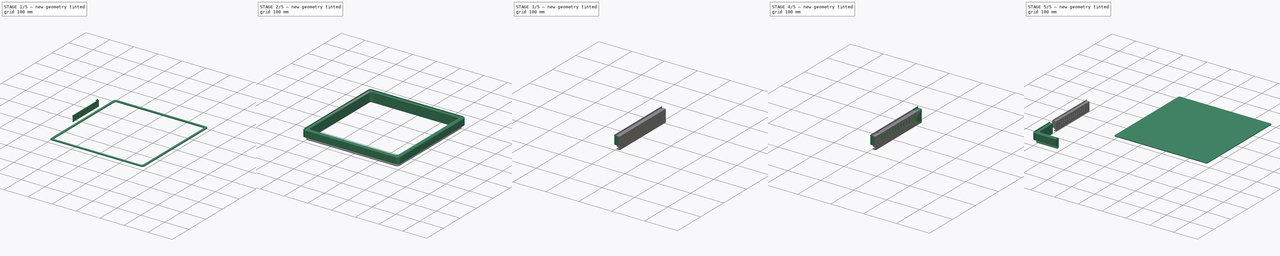
[diagram: build sequence overview — one tinted view per stage of 5, left to right]
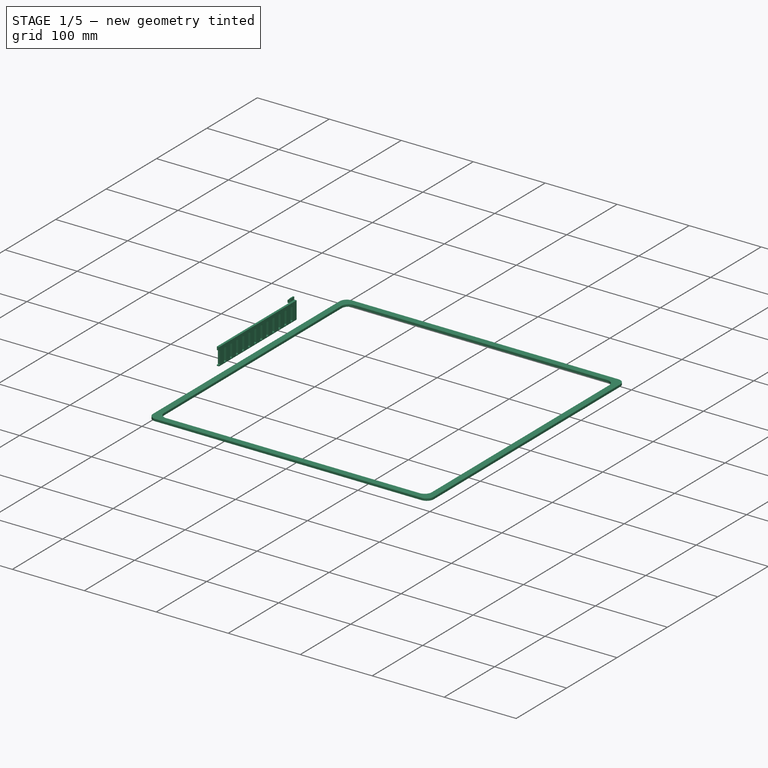
[diagram: stage 1 of 5 — iso view after this stage's code; geometry added in this stage tinted green]
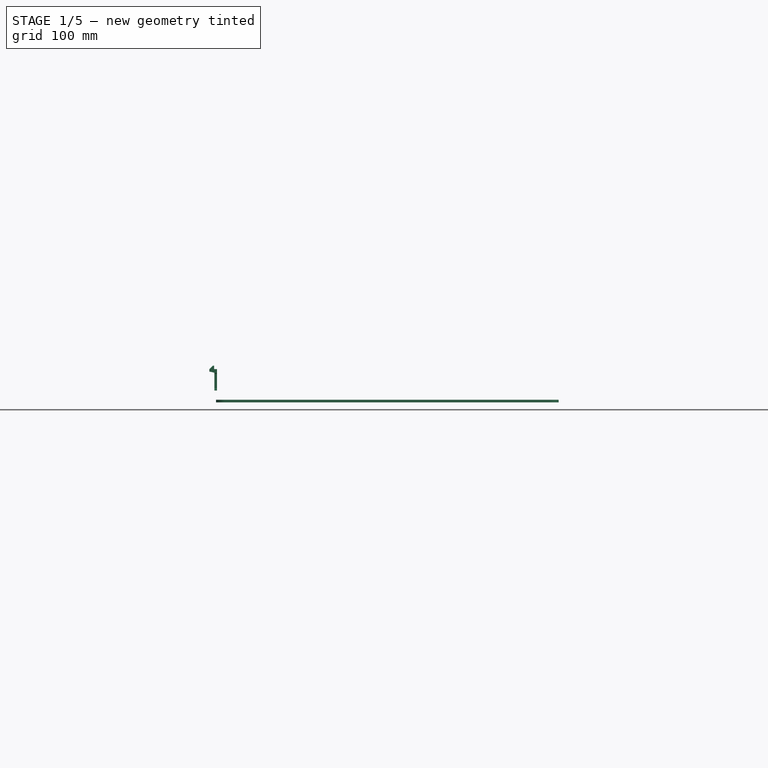
[diagram: stage 1 of 5 — front view after this stage's code; geometry added in this stage tinted green]
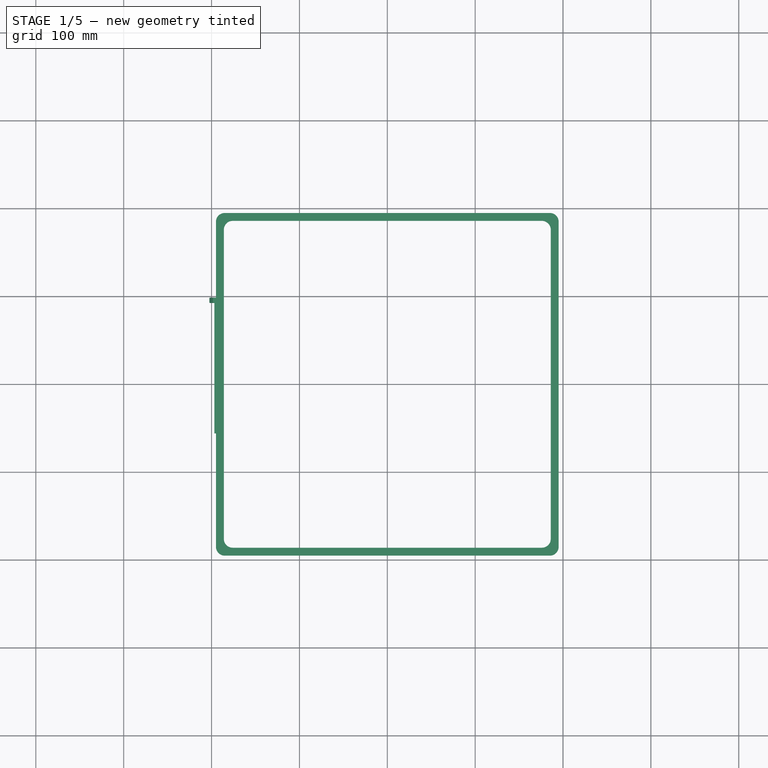
[diagram: stage 1 of 5 — top view after this stage's code; geometry added in this stage tinted green]
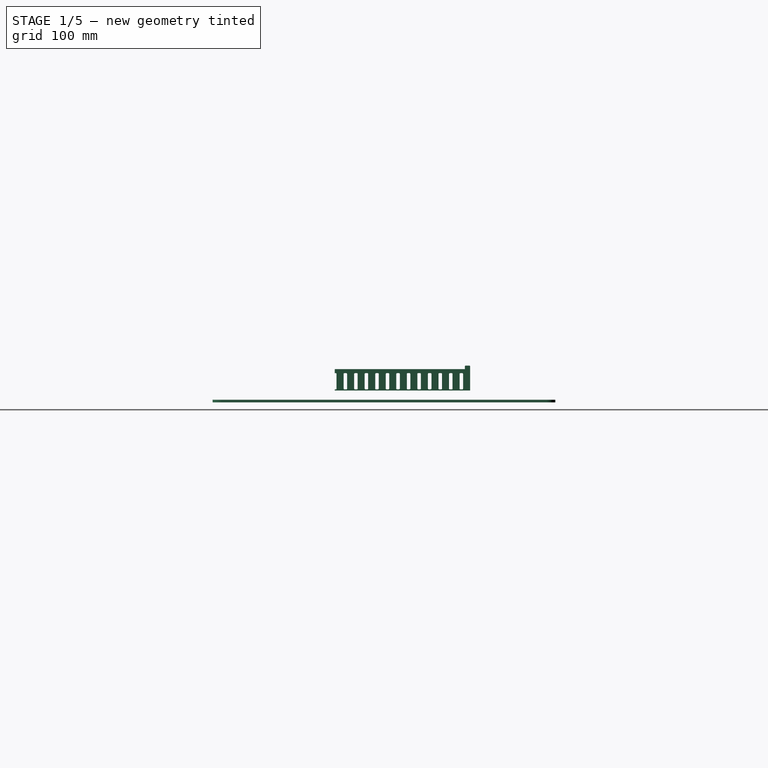
[diagram: stage 1 of 5 — right view after this stage's code; geometry added in this stage tinted green]
FCSTD DOCUMENT  (FreeCAD 1.0R38641 +468 (Git))
Label: Creality K1 Max Slim Lid Riser
License: All rights reserved
LicenseURL: https://en.wikipedia.org/wiki/All_rights_reserved
objects: Sketcher::SketchObject×16, PartDesign::Pad×8, PartDesign::Pocket×8, PartDesign::Body×6, Measure::MeasureLength×4, PartDesign::Chamfer×3, PartDesign::FeatureBase×3, PartDesign::Mirrored×2, PartDesign::Plane×1, Measure::MeasureDistance×1, App::DocumentObjectGroup×1, PartDesign::ShapeBinder×1
note: 107 computed .brp shape members not serialized (recipe doc carries the construction recipe); baked Part::Feature solids carry a one-line shape summary decoded from their .brp

FEATURE [PartDesign::Body] Body  label="K1 Max Top Glass Lid"
  AllowCompound = false
  Group = -> [Sketch,Pad]
  Origin = -> Origin
  Placement = pos=(0,0,110) rot=(0,0,1;0rad)
  Tip = -> Pad
FEATURE [Sketcher::SketchObject] Sketch001
  ArcFitTolerance = 1e-06
  AttachmentSupport = -> [XY_Plane001]
  FullyConstrained = true
  MakeInternals = false
  MapMode = 5
  sketch-geometry (26):
    g0: LineSegment StartX=-185 StartY=-195 StartZ=0 EndX=185 EndY=-195 EndZ=0
    g1: LineSegment StartX=195 StartY=-185 StartZ=0 EndX=195 EndY=185 EndZ=0
    g2: LineSegment StartX=185 StartY=195 StartZ=0 EndX=-185 EndY=195 EndZ=0
    g3: LineSegment StartX=-195 StartY=185 StartZ=0 EndX=-195 EndY=-185 EndZ=0
    g4: GeomPoint [constr] X=0 Y=0 Z=0
    g5: LineSegment StartX=186 StartY=-176 StartZ=0 EndX=186 EndY=176 EndZ=0
    g6: LineSegment StartX=176 StartY=186 StartZ=0 EndX=-176 EndY=186 EndZ=0
    g7: LineSegment StartX=-186 StartY=176 StartZ=0 EndX=-186 EndY=-176 EndZ=0
    g8: LineSegment StartX=-176 StartY=-186 StartZ=0 EndX=176 EndY=-186 EndZ=0
    g9: GeomPoint [constr] X=0 Y=0 Z=0
    g10: ArcOfCircle CenterX=-185 CenterY=185 CenterZ=0 NormalX=0 NormalY=0 NormalZ=1 AngleXU=0 Radius=10 StartAngle=1.5708 EndAngle=3.14159
    g11: GeomPoint [constr] X=-195 Y=195 Z=0
    g12: ArcOfCircle CenterX=185 CenterY=185 CenterZ=0 NormalX=0 NormalY=0 NormalZ=1 AngleXU=0 Radius=10 StartAngle=0 EndAngle=1.5708
    g13: GeomPoint [constr] X=195 Y=195 Z=0
    g14: ArcOfCircle CenterX=185 CenterY=-185 CenterZ=0 NormalX=0 NormalY=0 NormalZ=1 AngleXU=0 Radius=10 StartAngle=4.71239 EndAngle=6.28319
    g15: GeomPoint [constr] X=195 Y=-195 Z=0
    g16: ArcOfCircle CenterX=-185 CenterY=-185 CenterZ=0 NormalX=0 NormalY=0 NormalZ=1 AngleXU=0 Radius=10 StartAngle=3.14159 EndAngle=4.71239
    g17: GeomPoint [constr] X=-195 Y=-195 Z=0
    g18: ArcOfCircle CenterX=176 CenterY=-176 CenterZ=0 NormalX=0 NormalY=0 NormalZ=1 AngleXU=0 Radius=10 StartAngle=4.71239 EndAngle=6.28319
    g19: GeomPoint [constr] X=186 Y=-186 Z=0
    g20: ArcOfCircle CenterX=176 CenterY=176 CenterZ=0 NormalX=0 NormalY=0 NormalZ=1 AngleXU=0 Radius=10 StartAngle=3e-16 EndAngle=1.5708
    g21: GeomPoint [constr] X=186 Y=186 Z=0
    g22: ArcOfCircle CenterX=-176 CenterY=176 CenterZ=0 NormalX=0 NormalY=0 NormalZ=1 AngleXU=0 Radius=10 StartAngle=1.5708 EndAngle=3.14159
    g23: GeomPoint [constr] X=-186 Y=186 Z=0
    g24: ArcOfCircle CenterX=-176 CenterY=-176 CenterZ=0 NormalX=0 NormalY=0 NormalZ=1 AngleXU=0 Radius=10 StartAngle=3.14159 EndAngle=4.71239
    g25: GeomPoint [constr] X=-186 Y=-186 Z=0
  constraints (56):
    c: Horizontal(g0)
    c: Horizontal(g2)
    c: Vertical(g1)
    c: Vertical(g3)
    c: Symmetric(g13,g17,g4)
    c: Distance(g15,g17) = 390
    c: Distance(g17,g11) = 390
    c: Coincident(g4,g-1)
    c: Vertical(g5)
    c: Vertical(g7)
    c: Horizontal(g6)
    c: Horizontal(g8)
    c: Symmetric(g23,g19,g9)
    c: Coincident(g9,g4)
    c: DistanceX(g25,g19) = 372
    c: DistanceY(g19,g21) = 372
    c: PointOnObject(g11,g2)
    c: PointOnObject(g11,g3)
    c: Tangent(g2,g10) = -1.5708
    c: Tangent(g3,g10) = -1.5708
    c: PointOnObject(g13,g1)
    c: PointOnObject(g13,g2)
    c: Tangent(g1,g12) = -1.5708
    c: Tangent(g2,g12) = -1.5708
    c: PointOnObject(g15,g0)
    c: PointOnObject(g15,g1)
    c: Tangent(g0,g14) = -1.5708
    c: Tangent(g1,g14) = -1.5708
    c: PointOnObject(g17,g0)
    c: PointOnObject(g17,g3)
    c: Tangent(g0,g16) = -1.5708
    c: Tangent(g3,g16) = -1.5708
    c: PointOnObject(g19,g5)
    c: PointOnObject(g19,g8)
    c: Tangent(g5,g18) = -1.5708
    c: Tangent(g8,g18) = -1.5708
    c: PointOnObject(g21,g5)
    c: PointOnObject(g21,g6)
    c: Tangent(g5,g20) = -1.5708
    c: Tangent(g6,g20) = -1.5708
    c: PointOnObject(g23,g6)
    c: PointOnObject(g23,g7)
    c: Tangent(g6,g22) = -1.5708
    c: Tangent(g7,g22) = -1.5708
    c: PointOnObject(g25,g7)
    c: PointOnObject(g25,g8)
    c: Tangent(g7,g24) = -1.5708
    c: Tangent(g8,g24) = -1.5708
    c: Radius(g10) = 10
    c: Equal(g16,g14)
    c: Equal(g14,g12)
    c: Equal(g12,g10)
    c: Equal(g14,g18)
    c: Equal(g20,g22)
    c: Equal(g22,g24)
    c: Equal(g24,g18)
FEATURE [PartDesign::Pad] Pad001
  Direction = (0,0,1)
  Length = 3
  Length2 = 10
  Profile = -> Sketch001
  ReferenceAxis = -> Sketch001 [N_Axis]
  Refine = true
  Suppressed = false
  Type = 0
FEATURE [PartDesign::Body] Body004  label="K1 Max Glass Riser - Vented Side Panel"
  AllowCompound = false
  Group = -> [Clone002,Sketch010,Pocket004,Sketch011,Pocket005,Sketch012,Chamfer001,Pocket006]
  Origin = -> Origin004
  Placement = pos=(0,218,0) rot=(0,0,1;0rad)
  Tip = -> Pocket006
FEATURE [Measure::MeasureLength] Length001  label="Length001: 24.50 mm"
  Elements = -> [Body004]
  Length = 24.5
FEATURE [Measure::MeasureLength] Length002  label="Length002: 3.50 mm"
  Elements = -> [Body004]
  Length = 3.5
FEATURE [Measure::MeasureLength] Length003  label="Length003: 160.00 mm"
  Elements = -> [Body004]
  Length = 160
FEATURE [Measure::MeasureDistance] Distance  label="Distance: 4.00 mm"
  Distance = 3.99991
  DistanceX = 0
  DistanceY = 3.99991
  DistanceZ = 0
  Element1 = -> Body004 [Pocket006.Edge261]
  Element2 = -> Body004 [Pocket006.Edge246]
  Position1 = (-193.5,160,32.25)
  Position2 = (-193.5,156,32.25)
FEATURE [App::DocumentObjectGroup] Measurements
  Group = -> [Length,Length001,Length002,Length003,Distance]
FEATURE [PartDesign::ShapeBinder] CopyPocket007
  Placement = pos=(0,18,0) rot=(0,0,1;0rad)
  TraceSupport = false
FEATURE [Sketcher::SketchObject] Sketch013
  ArcFitTolerance = 1e-06
  AttachmentSupport = -> [CopyPocket007]
  ExternalGeometry = -> [CopyPocket007]
  FullyConstrained = false
  MakeInternals = false
  MapMode = 5
  Placement = pos=(4.16e-12,98,-4.936e-13) rot=(1,0,0;1.5708rad)
  sketch-geometry (13):
    g0: LineSegment StartX=-193.75 StartY=37.75 StartZ=0 EndX=-197 EndY=37.75 EndZ=0
    g1: LineSegment StartX=-193.75 StartY=13.5 StartZ=0 EndX=-193.75 EndY=37.75 EndZ=0
    g2: LineSegment StartX=-202.5 StartY=34.75 StartZ=0 EndX=-201 EndY=34.75 EndZ=0
    g3: LineSegment StartX=-201 StartY=34.75 StartZ=0 EndX=-197 EndY=33.75 EndZ=0
    g4: LineSegment StartX=-202.5 StartY=34.75 StartZ=0 EndX=-202.5 EndY=37.75 EndZ=0
    g5: LineSegment StartX=-202.5 StartY=37.75 StartZ=0 EndX=-198.5 EndY=41.75 EndZ=0
    g6: LineSegment StartX=-198.5 StartY=41.75 StartZ=0 EndX=-197 EndY=41.75 EndZ=0
    g7: LineSegment StartX=-197 StartY=41.75 StartZ=0 EndX=-197 EndY=37.75 EndZ=0
    g8: LineSegment StartX=-193.75 StartY=13.5 StartZ=0 EndX=-196.75 EndY=13.5 EndZ=0
    g9: LineSegment StartX=-196.75 StartY=13.5 StartZ=0 EndX=-196.75 EndY=33.75 EndZ=0
    g10: LineSegment StartX=-196.75 StartY=33.75 StartZ=0 EndX=-197 EndY=33.75 EndZ=0
    g11: LineSegment [constr] StartX=-196.75 StartY=24.8331 StartZ=0 EndX=-197 EndY=24.8331 EndZ=0
    g12: LineSegment [constr] StartX=-193.75 StartY=25.625 StartZ=0 EndX=-193.5 EndY=25.625 EndZ=0
  constraints (34):
    c: Coincident(g1,g0)
    c: Horizontal(g0)
    c: Vertical(g1)
    c: PointOnObject(g0,g-6)
    c: DistanceY(g1,g1) = 24.25
    c: Coincident(g2,g-9)
    c: Coincident(g2,g-9)
    c: Coincident(g3,g2)
    c: Coincident(g4,g2)
    c: Coincident(g4,g-10)
    c: Coincident(g5,g4)
    c: Coincident(g5,g-4)
    c: Coincident(g6,g5)
    c: Coincident(g6,g-5)
    c: Coincident(g7,g6)
    c: Vertical(g7)
    c: Coincident(g8,g1)
    c: Horizontal(g8)
    c: Coincident(g9,g8)
    c: Vertical(g9)
    c: Coincident(g10,g9)
    c: Coincident(g10,g3)
    c: Horizontal(g10)
    c: PointOnObject(g11,g9)
    c: PointOnObject(g11,g-7)
    c: Horizontal(g11)
    c: Symmetric(g1,g1,g12)
    c: Horizontal(g12)
    c: Equal(g11,g12)
    c: Distance(g8,g8) = 3
    c: PointOnObject(g0,g7)
    c: PointOnObject(g3,g-8)
    c: DistanceX(g0,g0) = 3.25
    c: DistanceX(g10,g10) = 0.25
FEATURE [PartDesign::Pad] Pad006
  Direction = (-5.2e-14,-1,6.1e-15)
  Length = 6
  Length2 = 10
  Placement = pos=(0,18,0) rot=(0,0,1;0rad)
  Profile = -> Sketch013
  ReferenceAxis = -> Sketch013 [N_Axis]
  Refine = true
  Suppressed = false
  Type = 0
FEATURE [Sketcher::SketchObject] Sketch014
  ArcFitTolerance = 1e-06
  AttachmentSupport = -> [Pad006]
  ExternalGeometry = -> [Pad006]
  FullyConstrained = true
  MakeInternals = false
  MapMode = 5
  Placement = pos=(3.845e-12,92,-4.329e-13) rot=(1,0,0;1.5708rad)
  sketch-geometry (4):
    g0: LineSegment StartX=-196.75 StartY=13.5 StartZ=0 EndX=-193.75 EndY=13.5 EndZ=0
    g1: LineSegment StartX=-193.75 StartY=13.5 StartZ=0 EndX=-193.75 EndY=37.75 EndZ=0
    g2: LineSegment StartX=-193.75 StartY=37.75 StartZ=0 EndX=-196.75 EndY=37.75 EndZ=0
    g3: LineSegment StartX=-196.75 StartY=37.75 StartZ=0 EndX=-196.75 EndY=13.5 EndZ=0
  constraints (10):
    c: Coincident(g0,g1)
    c: Coincident(g1,g2)
    c: Coincident(g2,g3)
    c: Coincident(g3,g0)
    c: Horizontal(g0)
    c: Horizontal(g2)
    c: Vertical(g1)
    c: Vertical(g3)
    c: Coincident(g0,g-6)
    c: Coincident(g1,g-4)
FEATURE [PartDesign::Pad] Pad007
  BaseFeature = -> Pad006
  Direction = (-5.2e-14,-1,5.8e-15)
  Length = 148
  Length2 = 10
  Offset = -8
  Placement = pos=(0,18,0) rot=(0,0,1;0rad)
  Profile = -> Sketch014
  ReferenceAxis = -> Sketch014 [N_Axis]
  Refine = true
  Suppressed = false
  Type = 0
FEATURE [Sketcher::SketchObject] Sketch015
  ArcFitTolerance = 1e-06
  AttachmentSupport = -> [Pad007]
  ExternalGeometry = -> [Pad007]
  FullyConstrained = false
  MakeInternals = false
  MapMode = 5
  Placement = pos=(-196.75,18,9.582e-13) rot=(-0.57735,0.57735,0.57735;4.18879rad)
  sketch-geometry (108):
    g0: LineSegment StartX=-72 StartY=32.25 StartZ=0 EndX=-72 EndY=15.75 EndZ=0
    g1: LineSegment StartX=-71 StartY=14.75 StartZ=0 EndX=-69 EndY=14.75 EndZ=0
    g2: LineSegment StartX=-68 StartY=15.75 StartZ=0 EndX=-68 EndY=32.25 EndZ=0
    g3: LineSegment StartX=-69 StartY=33.25 StartZ=0 EndX=-71 EndY=33.25 EndZ=0
    g4: ArcOfCircle CenterX=-71 CenterY=32.25 CenterZ=0 NormalX=0 NormalY=0 NormalZ=1 AngleXU=0 Radius=1 StartAngle=1.5708 EndAngle=3.14159
    g5: ArcOfCircle CenterX=-71 CenterY=15.75 CenterZ=0 NormalX=0 NormalY=0 NormalZ=1 AngleXU=0 Radius=1 StartAngle=3.14159 EndAngle=4.71239
    g6: ArcOfCircle CenterX=-69 CenterY=15.75 CenterZ=0 NormalX=0 NormalY=0 NormalZ=1 AngleXU=0 Radius=1 StartAngle=4.71239 EndAngle=6.28319
    g7: ArcOfCircle CenterX=-69 CenterY=32.25 CenterZ=0 NormalX=0 NormalY=0 NormalZ=1 AngleXU=0 Radius=1 StartAngle=1.3e-15 EndAngle=1.5708
    g8: GeomPoint [constr] X=-72 Y=33.25 Z=0
    g9: GeomPoint [constr] X=-68 Y=14.75 Z=0
    g10: LineSegment [constr] StartX=-70 StartY=14.75 StartZ=0 EndX=-70 EndY=13.5 EndZ=0
    g11: LineSegment [constr] StartX=-72 StartY=32.25 StartZ=0 EndX=-60 EndY=32.25 EndZ=0
    g12: LineSegment StartX=-60 StartY=32.25 StartZ=0 EndX=-60 EndY=15.75 EndZ=0
    g13: LineSegment StartX=-59 StartY=14.75 StartZ=0 EndX=-57 EndY=14.75 EndZ=0
    g14: LineSegment StartX=-56 StartY=15.75 StartZ=0 EndX=-56 EndY=32.25 EndZ=0
    g15: LineSegment StartX=-57 StartY=33.25 StartZ=0 EndX=-59 EndY=33.25 EndZ=0
    g16: ArcOfCircle CenterX=-59 CenterY=32.25 CenterZ=0 NormalX=0 NormalY=0 NormalZ=1 AngleXU=0 Radius=1 StartAngle=1.5708 EndAngle=3.14159
    g17: ArcOfCircle CenterX=-59 CenterY=15.75 CenterZ=0 NormalX=0 NormalY=0 NormalZ=1 AngleXU=0 Radius=1 StartAngle=3.14159 EndAngle=4.71239
    g18: ArcOfCircle CenterX=-57 CenterY=15.75 CenterZ=0 NormalX=0 NormalY=0 NormalZ=1 AngleXU=0 Radius=1 StartAngle=4.71239 EndAngle=6.28319
    g19: ArcOfCircle CenterX=-57 CenterY=32.25 CenterZ=0 NormalX=0 NormalY=0 NormalZ=1 AngleXU=0 Radius=1 StartAngle=0 EndAngle=1.5708
    g20: LineSegment StartX=-48 StartY=32.25 StartZ=0 EndX=-48 EndY=15.75 EndZ=0
    g21: LineSegment StartX=-47 StartY=14.75 StartZ=0 EndX=-45 EndY=14.75 EndZ=0
    g22: LineSegment StartX=-44 StartY=15.75 StartZ=0 EndX=-44 EndY=32.25 EndZ=0
    g23: LineSegment StartX=-45 StartY=33.25 StartZ=0 EndX=-47 EndY=33.25 EndZ=0
    g24: ArcOfCircle CenterX=-47 CenterY=32.25 CenterZ=0 NormalX=0 NormalY=0 NormalZ=1 AngleXU=0 Radius=1 StartAngle=1.5708 EndAngle=3.14159
    g25: ArcOfCircle CenterX=-47 CenterY=15.75 CenterZ=0 NormalX=0 NormalY=0 NormalZ=1 AngleXU=0 Radius=1 StartAngle=3.14159 EndAngle=4.71239
    g26: ArcOfCircle CenterX=-45 CenterY=15.75 CenterZ=0 NormalX=0 NormalY=0 NormalZ=1 AngleXU=0 Radius=1 StartAngle=4.71239 EndAngle=6.28319
    g27: ArcOfCircle CenterX=-45 CenterY=32.25 CenterZ=0 NormalX=0 NormalY=0 NormalZ=1 AngleXU=0 Radius=1 StartAngle=0 EndAngle=1.5708
    g28: LineSegment StartX=-36 StartY=32.25 StartZ=0 EndX=-36 EndY=15.75 EndZ=0
    g29: LineSegment StartX=-35 StartY=14.75 StartZ=0 EndX=-33 EndY=14.75 EndZ=0
    g30: LineSegment StartX=-32 StartY=15.75 StartZ=0 EndX=-32 EndY=32.25 EndZ=0
    g31: LineSegment StartX=-33 StartY=33.25 StartZ=0 EndX=-35 EndY=33.25 EndZ=0
    g32: ArcOfCircle CenterX=-35 CenterY=32.25 CenterZ=0 NormalX=0 NormalY=0 NormalZ=1 AngleXU=0 Radius=1 StartAngle=1.5708 EndAngle=3.14159
    g33: ArcOfCircle CenterX=-35 CenterY=15.75 CenterZ=0 NormalX=0 NormalY=0 NormalZ=1 AngleXU=0 Radius=1 StartAngle=3.14159 EndAngle=4.71239
    g34: ArcOfCircle CenterX=-33 CenterY=15.75 CenterZ=0 NormalX=0 NormalY=0 NormalZ=1 AngleXU=0 Radius=1 StartAngle=4.71239 EndAngle=6.28319
    g35: ArcOfCircle CenterX=-33 CenterY=32.25 CenterZ=0 NormalX=0 NormalY=0 NormalZ=1 AngleXU=0 Radius=1 StartAngle=0 EndAngle=1.5708
    g36: LineSegment StartX=-24 StartY=32.25 StartZ=0 EndX=-24 EndY=15.75 EndZ=0
    g37: LineSegment StartX=-23 StartY=14.75 StartZ=0 EndX=-21 EndY=14.75 EndZ=0
    g38: LineSegment StartX=-20 StartY=15.75 StartZ=0 EndX=-20 EndY=32.25 EndZ=0
    g39: LineSegment StartX=-21 StartY=33.25 StartZ=0 EndX=-23 EndY=33.25 EndZ=0
    g40: ArcOfCircle CenterX=-23 CenterY=32.25 CenterZ=0 NormalX=0 NormalY=0 NormalZ=1 AngleXU=0 Radius=1 StartAngle=1.5708 EndAngle=3.14159
    g41: ArcOfCircle CenterX=-23 CenterY=15.75 CenterZ=0 NormalX=0 NormalY=0 NormalZ=1 AngleXU=0 Radius=1 StartAngle=3.14159 EndAngle=4.71239
    g42: ArcOfCircle CenterX=-21 CenterY=15.75 CenterZ=0 NormalX=0 NormalY=0 NormalZ=1 AngleXU=0 Radius=1 StartAngle=4.71239 EndAngle=6.28319
    g43: ArcOfCircle CenterX=-21 CenterY=32.25 CenterZ=0 NormalX=0 NormalY=0 NormalZ=1 AngleXU=0 Radius=1 StartAngle=0 EndAngle=1.5708
    g44: LineSegment StartX=-12 StartY=32.25 StartZ=0 EndX=-12 EndY=15.75 EndZ=0
    g45: LineSegment StartX=-11 StartY=14.75 StartZ=0 EndX=-9 EndY=14.75 EndZ=0
    g46: LineSegment StartX=-8 StartY=15.75 StartZ=0 EndX=-8 EndY=32.25 EndZ=0
    g47: LineSegment StartX=-9 StartY=33.25 StartZ=0 EndX=-11 EndY=33.25 EndZ=0
    g48: ArcOfCircle CenterX=-11 CenterY=32.25 CenterZ=0 NormalX=0 NormalY=0 NormalZ=1 AngleXU=0 Radius=1 StartAngle=1.5708 EndAngle=3.14159
    g49: ArcOfCircle CenterX=-11 CenterY=15.75 CenterZ=0 NormalX=0 NormalY=0 NormalZ=1 AngleXU=0 Radius=1 StartAngle=3.14159 EndAngle=4.71239
    g50: ArcOfCircle CenterX=-9 CenterY=15.75 CenterZ=0 NormalX=0 NormalY=0 NormalZ=1 AngleXU=0 Radius=1 StartAngle=4.71239 EndAngle=6.28319
    g51: ArcOfCircle CenterX=-9 CenterY=32.25 CenterZ=0 NormalX=0 NormalY=0 NormalZ=1 AngleXU=0 Radius=1 StartAngle=0 EndAngle=1.5708
    g52: LineSegment StartX=-4e-16 StartY=32.25 StartZ=0 EndX=-4e-16 EndY=15.75 EndZ=0
    g53: LineSegment StartX=1 StartY=14.75 StartZ=0 EndX=3 EndY=14.75 EndZ=0
    g54: LineSegment StartX=4 StartY=15.75 StartZ=0 EndX=4 EndY=32.25 EndZ=0
    g55: LineSegment StartX=3 StartY=33.25 StartZ=0 EndX=1 EndY=33.25 EndZ=0
    g56: ArcOfCircle CenterX=1 CenterY=32.25 CenterZ=0 NormalX=0 NormalY=0 NormalZ=1 AngleXU=0 Radius=1 StartAngle=1.5708 EndAngle=3.14159
    g57: ArcOfCircle CenterX=1 CenterY=15.75 CenterZ=0 NormalX=0 NormalY=0 NormalZ=1 AngleXU=0 Radius=1 StartAngle=3.14159 EndAngle=4.71239
    g58: ArcOfCircle CenterX=3 CenterY=15.75 CenterZ=0 NormalX=0 NormalY=0 NormalZ=1 AngleXU=0 Radius=1 StartAngle=4.71239 EndAngle=6.28319
    g59: ArcOfCircle CenterX=3 CenterY=32.25 CenterZ=0 NormalX=0 NormalY=0 NormalZ=1 AngleXU=0 Radius=1 StartAngle=0 EndAngle=1.5708
    g60: LineSegment StartX=12 StartY=32.25 StartZ=0 EndX=12 EndY=15.75 EndZ=0
    g61: LineSegment StartX=13 StartY=14.75 StartZ=0 EndX=15 EndY=14.75 EndZ=0
    g62: LineSegment StartX=16 StartY=15.75 StartZ=0 EndX=16 EndY=32.25 EndZ=0
    g63: LineSegment StartX=15 StartY=33.25 StartZ=0 EndX=13 EndY=33.25 EndZ=0
    g64: ArcOfCircle CenterX=13 CenterY=32.25 CenterZ=0 NormalX=0 NormalY=0 NormalZ=1 AngleXU=0 Radius=1 StartAngle=1.5708 EndAngle=3.14159
    g65: ArcOfCircle CenterX=13 CenterY=15.75 CenterZ=0 NormalX=0 NormalY=0 NormalZ=1 AngleXU=0 Radius=1 StartAngle=3.14159 EndAngle=4.71239
    g66: ArcOfCircle CenterX=15 CenterY=15.75 CenterZ=0 NormalX=0 NormalY=0 NormalZ=1 AngleXU=0 Radius=1 StartAngle=4.71239 EndAngle=6.28319
    g67: ArcOfCircle CenterX=15 CenterY=32.25 CenterZ=0 NormalX=0 NormalY=0 NormalZ=1 AngleXU=0 Radius=1 StartAngle=0 EndAngle=1.5708
    g68: LineSegment StartX=24 StartY=32.25 StartZ=0 EndX=24 EndY=15.75 EndZ=0
    g69: LineSegment StartX=25 StartY=14.75 StartZ=0 EndX=27 EndY=14.75 EndZ=0
    g70: LineSegment StartX=28 StartY=15.75 StartZ=0 EndX=28 EndY=32.25 EndZ=0
    g71: LineSegment StartX=27 StartY=33.25 StartZ=0 EndX=25 EndY=33.25 EndZ=0
    g72: ArcOfCircle CenterX=25 CenterY=32.25 CenterZ=0 NormalX=0 NormalY=0 NormalZ=1 AngleXU=0 Radius=1 StartAngle=1.5708 EndAngle=3.14159
    g73: ArcOfCircle CenterX=25 CenterY=15.75 CenterZ=0 NormalX=0 NormalY=0 NormalZ=1 AngleXU=0 Radius=1 StartAngle=3.14159 EndAngle=4.71239
    g74: ArcOfCircle CenterX=27 CenterY=15.75 CenterZ=0 NormalX=0 NormalY=0 NormalZ=1 AngleXU=0 Radius=1 StartAngle=4.71239 EndAngle=6.28319
    g75: ArcOfCircle CenterX=27 CenterY=32.25 CenterZ=0 NormalX=0 NormalY=0 NormalZ=1 AngleXU=0 Radius=1 StartAngle=0 EndAngle=1.5708
    g76: LineSegment StartX=36 StartY=32.25 StartZ=0 EndX=36 EndY=15.75 EndZ=0
    g77: LineSegment StartX=37 StartY=14.75 StartZ=0 EndX=39 EndY=14.75 EndZ=0
    g78: LineSegment StartX=40 StartY=15.75 StartZ=0 EndX=40 EndY=32.25 EndZ=0
    g79: LineSegment StartX=39 StartY=33.25 StartZ=0 EndX=37 EndY=33.25 EndZ=0
    g80: ArcOfCircle CenterX=37 CenterY=32.25 CenterZ=0 NormalX=0 NormalY=0 NormalZ=1 AngleXU=0 Radius=1 StartAngle=1.5708 EndAngle=3.14159
    g81: ArcOfCircle CenterX=37 CenterY=15.75 CenterZ=0 NormalX=0 NormalY=0 NormalZ=1 AngleXU=0 Radius=1 StartAngle=3.14159 EndAngle=4.71239
    g82: ArcOfCircle CenterX=39 CenterY=15.75 CenterZ=0 NormalX=0 NormalY=0 NormalZ=1 AngleXU=0 Radius=1 StartAngle=4.71239 EndAngle=6.28319
    g83: ArcOfCircle CenterX=39 CenterY=32.25 CenterZ=0 NormalX=0 NormalY=0 NormalZ=1 AngleXU=0 Radius=1 StartAngle=0 EndAngle=1.5708
    g84: LineSegment StartX=48 StartY=32.25 StartZ=0 EndX=48 EndY=15.75 EndZ=0
    g85: LineSegment StartX=49 StartY=14.75 StartZ=0 EndX=51 EndY=14.75 EndZ=0
    g86: LineSegment StartX=52 StartY=15.75 StartZ=0 EndX=52 EndY=32.25 EndZ=0
    g87: LineSegment StartX=51 StartY=33.25 StartZ=0 EndX=49 EndY=33.25 EndZ=0
    g88: ArcOfCircle CenterX=49 CenterY=32.25 CenterZ=0 NormalX=0 NormalY=0 NormalZ=1 AngleXU=0 Radius=1 StartAngle=1.5708 EndAngle=3.14159
    g89: ArcOfCircle CenterX=49 CenterY=15.75 CenterZ=0 NormalX=0 NormalY=0 NormalZ=1 AngleXU=0 Radius=1 StartAngle=3.14159 EndAngle=4.71239
    g90: ArcOfCircle CenterX=51 CenterY=15.75 CenterZ=0 NormalX=0 NormalY=0 NormalZ=1 AngleXU=0 Radius=1 StartAngle=4.71239 EndAngle=6.28319
    g91: ArcOfCircle CenterX=51 CenterY=32.25 CenterZ=0 NormalX=0 NormalY=0 NormalZ=1 AngleXU=0 Radius=1 StartAngle=0 EndAngle=1.5708
    g92: LineSegment StartX=60 StartY=32.25 StartZ=0 EndX=60 EndY=15.75 EndZ=0
    g93: LineSegment StartX=61 StartY=14.75 StartZ=0 EndX=63 EndY=14.75 EndZ=0
    g94: LineSegment StartX=64 StartY=15.75 StartZ=0 EndX=64 EndY=32.25 EndZ=0
    g95: LineSegment StartX=63 StartY=33.25 StartZ=0 EndX=61 EndY=33.25 EndZ=0
    g96: ArcOfCircle CenterX=61 CenterY=32.25 CenterZ=0 NormalX=0 NormalY=0 NormalZ=1 AngleXU=0 Radius=1 StartAngle=1.5708 EndAngle=3.14159
    g97: ArcOfCircle CenterX=61 CenterY=15.75 CenterZ=0 NormalX=0 NormalY=0 NormalZ=1 AngleXU=0 Radius=1 StartAngle=3.14159 EndAngle=4.71239
    g98: ArcOfCircle CenterX=63 CenterY=15.75 CenterZ=0 NormalX=0 NormalY=0 NormalZ=1 AngleXU=0 Radius=1 StartAngle=4.71239 EndAngle=6.28319
    g99: ArcOfCircle CenterX=63 CenterY=32.25 CenterZ=0 NormalX=0 NormalY=0 NormalZ=1 AngleXU=0 Radius=1 StartAngle=0 EndAngle=1.5708
    g100: LineSegment StartX=72 StartY=32.25 StartZ=0 EndX=72 EndY=15.75 EndZ=0
    g101: LineSegment StartX=73 StartY=14.75 StartZ=0 EndX=75 EndY=14.75 EndZ=0
    g102: LineSegment StartX=76 StartY=15.75 StartZ=0 EndX=76 EndY=32.25 EndZ=0
    g103: LineSegment StartX=75 StartY=33.25 StartZ=0 EndX=73 EndY=33.25 EndZ=0
    g104: ArcOfCircle CenterX=73 CenterY=32.25 CenterZ=0 NormalX=0 NormalY=0 NormalZ=1 AngleXU=0 Radius=1 StartAngle=1.5708 EndAngle=3.14159
    g105: ArcOfCircle CenterX=73 CenterY=15.75 CenterZ=0 NormalX=0 NormalY=0 NormalZ=1 AngleXU=0 Radius=1 StartAngle=3.14159 EndAngle=4.71239
    g106: ArcOfCircle CenterX=75 CenterY=15.75 CenterZ=0 NormalX=0 NormalY=0 NormalZ=1 AngleXU=0 Radius=1 StartAngle=4.71239 EndAngle=6.28319
    g107: ArcOfCircle CenterX=75 CenterY=32.25 CenterZ=0 NormalX=0 NormalY=0 NormalZ=1 AngleXU=0 Radius=1 StartAngle=0 EndAngle=1.5708
  constraints (246):
    c: Tangent(g0,g4) = -1.5708
    c: Tangent(g0,g5) = -1.5708
    c: Tangent(g1,g5) = -1.5708
    c: Tangent(g1,g6) = -1.5708
    c: Tangent(g2,g6) = -1.5708
    c: Tangent(g2,g7) = -1.5708
    c: Tangent(g3,g7) = -1.5708
    c: Tangent(g3,g4) = -1.5708
    c: Vertical(g0)
    c: Vertical(g2)
    c: Horizontal(g1)
    c: Horizontal(g3)
    c: Equal(g4,g5)
    c: Equal(g5,g6)
    c: Equal(g6,g7)
    c: PointOnObject(g8,g0)
    c: PointOnObject(g8,g3)
    c: PointOnObject(g9,g1)
    c: PointOnObject(g9,g2)
    c: Distance(g2,g0) = 4
    c: Distance(g1,g3) = 18.5
    c: Symmetric(g1,g1,g10)
    c: PointOnObject(g10,g-3)
    c: Vertical(g10)
    c: Radius(g5) = 1
    c: Distance(g10,g10) = 1.25
    c: Distance(g-4,g0) = 8
    c: Distance(g11) = 12
    c: Coincident(g11,g0)
    c: Horizontal(g11)
    c: Tangent(g12,g16) = -1.5708
    c: Tangent(g20,g24) = -1.5708
    c: Tangent(g28,g32) = -1.5708
    c: Tangent(g36,g40) = -1.5708
    c: Tangent(g44,g48) = -1.5708
    c: Tangent(g52,g56) = -1.5708
    c: Tangent(g60,g64) = -1.5708
    c: Tangent(g68,g72) = -1.5708
    c: Tangent(g76,g80) = -1.5708
    c: Tangent(g84,g88) = -1.5708
    c: Tangent(g92,g96) = -1.5708
    c: Tangent(g100,g104) = -1.5708
    c: Tangent(g12,g17) = -1.5708
    c: Tangent(g20,g25) = -1.5708
    c: Tangent(g28,g33) = -1.5708
    c: Tangent(g36,g41) = -1.5708
    c: Tangent(g44,g49) = -1.5708
    c: Tangent(g52,g57) = -1.5708
    c: Tangent(g60,g65) = -1.5708
    c: Tangent(g68,g73) = -1.5708
    c: Tangent(g76,g81) = -1.5708
    c: Tangent(g84,g89) = -1.5708
    c: Tangent(g92,g97) = -1.5708
    c: Tangent(g100,g105) = -1.5708
    c: Tangent(g13,g17) = -1.5708
    c: Tangent(g21,g25) = -1.5708
    c: Tangent(g29,g33) = -1.5708
    c: Tangent(g37,g41) = -1.5708
    c: Tangent(g45,g49) = -1.5708
    c: Tangent(g53,g57) = -1.5708
    c: Tangent(g61,g65) = -1.5708
    c: Tangent(g69,g73) = -1.5708
    c: Tangent(g77,g81) = -1.5708
    c: Tangent(g85,g89) = -1.5708
    c: Tangent(g93,g97) = -1.5708
    c: Tangent(g101,g105) = -1.5708
    c: Tangent(g13,g18) = -1.5708
    c: Tangent(g21,g26) = -1.5708
    c: Tangent(g29,g34) = -1.5708
    c: Tangent(g37,g42) = -1.5708
    c: Tangent(g45,g50) = -1.5708
    c: Tangent(g53,g58) = -1.5708
    c: Tangent(g61,g66) = -1.5708
    c: Tangent(g69,g74) = -1.5708
    c: Tangent(g77,g82) = -1.5708
    c: Tangent(g85,g90) = -1.5708
    c: Tangent(g93,g98) = -1.5708
    c: Tangent(g101,g106) = -1.5708
    c: Tangent(g14,g18) = -1.5708
    c: Tangent(g22,g26) = -1.5708
    c: Tangent(g30,g34) = -1.5708
    c: Tangent(g38,g42) = -1.5708
    c: Tangent(g46,g50) = -1.5708
    c: Tangent(g54,g58) = -1.5708
    c: Tangent(g62,g66) = -1.5708
    c: Tangent(g70,g74) = -1.5708
    c: Tangent(g78,g82) = -1.5708
    c: Tangent(g86,g90) = -1.5708
    c: Tangent(g94,g98) = -1.5708
    c: Tangent(g102,g106) = -1.5708
    c: Tangent(g14,g19) = -1.5708
    c: Tangent(g22,g27) = -1.5708
    c: Tangent(g30,g35) = -1.5708
    c: Tangent(g38,g43) = -1.5708
    c: Tangent(g46,g51) = -1.5708
    c: Tangent(g54,g59) = -1.5708
    c: Tangent(g62,g67) = -1.5708
    c: Tangent(g70,g75) = -1.5708
    c: Tangent(g78,g83) = -1.5708
    c: Tangent(g86,g91) = -1.5708
    c: Tangent(g94,g99) = -1.5708
    c: Tangent(g102,g107) = -1.5708
    c: Tangent(g15,g19) = -1.5708
    c: Tangent(g23,g27) = -1.5708
    c: Tangent(g31,g35) = -1.5708
    c: Tangent(g39,g43) = -1.5708
    c: Tangent(g47,g51) = -1.5708
    c: Tangent(g55,g59) = -1.5708
    c: Tangent(g63,g67) = -1.5708
    c: Tangent(g71,g75) = -1.5708
    c: Tangent(g79,g83) = -1.5708
    c: Tangent(g87,g91) = -1.5708
    c: Tangent(g95,g99) = -1.5708
    c: Tangent(g103,g107) = -1.5708
    c: Tangent(g15,g16) = -1.5708
    c: Tangent(g23,g24) = -1.5708
    c: Tangent(g31,g32) = -1.5708
    c: Tangent(g39,g40) = -1.5708
    c: Tangent(g47,g48) = -1.5708
    c: Tangent(g55,g56) = -1.5708
    c: Tangent(g63,g64) = -1.5708
    c: Tangent(g71,g72) = -1.5708
    c: Tangent(g79,g80) = -1.5708
    c: Tangent(g87,g88) = -1.5708
    c: Tangent(g95,g96) = -1.5708
    c: Tangent(g103,g104) = -1.5708
    c: Vertical(g12)
    c: Vertical(g20)
    c: Vertical(g28)
    c: Vertical(g36)
    c: Vertical(g44)
    c: Vertical(g52)
    c: Vertical(g60)
    c: Vertical(g68)
    c: Vertical(g76)
    c: Vertical(g84)
    c: Vertical(g92)
    c: Vertical(g100)
    c: Vertical(g14)
    c: Vertical(g22)
    c: Vertical(g30)
    c: Vertical(g38)
    c: Vertical(g46)
    c: Vertical(g54)
    c: Vertical(g62)
    c: Vertical(g70)
    c: Vertical(g78)
    c: Vertical(g86)
    c: Vertical(g94)
    c: Vertical(g102)
    c: Horizontal(g13)
    c: Horizontal(g21)
    c: Horizontal(g29)
    c: Horizontal(g37)
    c: Horizontal(g45)
    c: Horizontal(g53)
    c: Horizontal(g61)
    c: Horizontal(g69)
    c: Horizontal(g77)
    c: Horizontal(g85)
    c: Horizontal(g93)
    c: Horizontal(g101)
    c: Horizontal(g15)
    c: Horizontal(g23)
    c: Horizontal(g31)
    c: Horizontal(g39)
    c: Horizontal(g47)
    c: Horizontal(g55)
    c: Horizontal(g63)
    c: Horizontal(g71)
    c: Horizontal(g79)
    c: Horizontal(g87)
    c: Horizontal(g95)
    c: Horizontal(g103)
    c: Equal(g16,g17)
    c: Equal(g24,g25)
    c: Equal(g32,g33)
    c: Equal(g40,g41)
    c: Equal(g48,g49)
    c: Equal(g56,g57)
    c: Equal(g64,g65)
    c: Equal(g72,g73)
    c: Equal(g80,g81)
    c: Equal(g88,g89)
    c: Equal(g96,g97)
    c: Equal(g104,g105)
    c: Equal(g17,g18)
    c: Equal(g25,g26)
    c: Equal(g33,g34)
    c: Equal(g41,g42)
    c: Equal(g49,g50)
    c: Equal(g57,g58)
    c: Equal(g65,g66)
    c: Equal(g73,g74)
    c: Equal(g81,g82)
    c: Equal(g89,g90)
    c: Equal(g97,g98)
    c: Equal(g105,g106)
    c: Equal(g18,g19)
    c: Equal(g26,g27)
    c: Equal(g34,g35)
    c: Equal(g42,g43)
    c: Equal(g50,g51)
    c: Equal(g58,g59)
    c: Equal(g66,g67)
    c: Equal(g74,g75)
    c: Equal(g82,g83)
    c: Equal(g90,g91)
    c: Equal(g98,g99)
    c: Equal(g106,g107)
    c: Distance(g14,g12) = 4
    c: Distance(g22,g20) = 4
    c: Distance(g30,g28) = 4
    c: Distance(g38,g36) = 4
    c: Distance(g46,g44) = 4
    c: Distance(g54,g52) = 4
    c: Distance(g62,g60) = 4
    c: Distance(g70,g68) = 4
    c: Distance(g78,g76) = 4
    c: Distance(g86,g84) = 4
    c: Distance(g94,g92) = 4
    c: Distance(g102,g100) = 4
    c: Distance(g13,g15) = 18.5
    c: Distance(g21,g23) = 18.5
    c: Distance(g29,g31) = 18.5
    c: Distance(g37,g39) = 18.5
    c: Distance(g45,g47) = 18.5
    c: Distance(g53,g55) = 18.5
    c: Distance(g61,g63) = 18.5
    c: Distance(g69,g71) = 18.5
    c: Distance(g77,g79) = 18.5
    c: Distance(g85,g87) = 18.5
    c: Distance(g93,g95) = 18.5
    c: Distance(g101,g103) = 18.5
    c: Radius(g17) = 1
    c: Radius(g25) = 1
    c: Radius(g33) = 1
    c: Radius(g41) = 1
    c: Radius(g49) = 1
    c: Radius(g57) = 1
    c: Radius(g65) = 1
    c: Radius(g73) = 1
    c: Radius(g81) = 1
    c: Radius(g89) = 1
    c: Radius(g97) = 1
    c: Radius(g105) = 1
FEATURE [PartDesign::Pocket] Pocket007
  BaseFeature = -> Pad007
  Direction = (1,-4.67e-14,-4.8e-15)
  Length = 5
  Length2 = 5
  Placement = pos=(0,18,0) rot=(0,0,1;0rad)
  Profile = -> Sketch015
  ReferenceAxis = -> Sketch015 [N_Axis]
  Refine = true
  Suppressed = false
  Type = 2
FEATURE [PartDesign::Chamfer] Chamfer002
  Angle = 45
  Base = -> Pocket007 [Edge124,Edge126,Edge128,Edge6,Edge5,Edge4]
  BaseFeature = -> Pocket007
  ChamferType = 0
  FlipDirection = false
  Placement = pos=(0,18,0) rot=(0,0,1;0rad)
  Refine = true
  Size = 0.5
  Size2 = 1
  SupportTransform = false
  Suppressed = false
  UseAllEdges = false
FEATURE [PartDesign::Body] Body005  label="K1 Max Glass Riser - Vented Sider"
  AllowCompound = false
  Group = -> [CopyPocket007,Sketch013,Pad006,Sketch014,Pad007,Sketch015,Pocket007,Chamfer002]
  Origin = -> Origin005
  Placement = pos=(0,216,0) rot=(0,0,1;0rad)
  Tip = -> Chamfer002
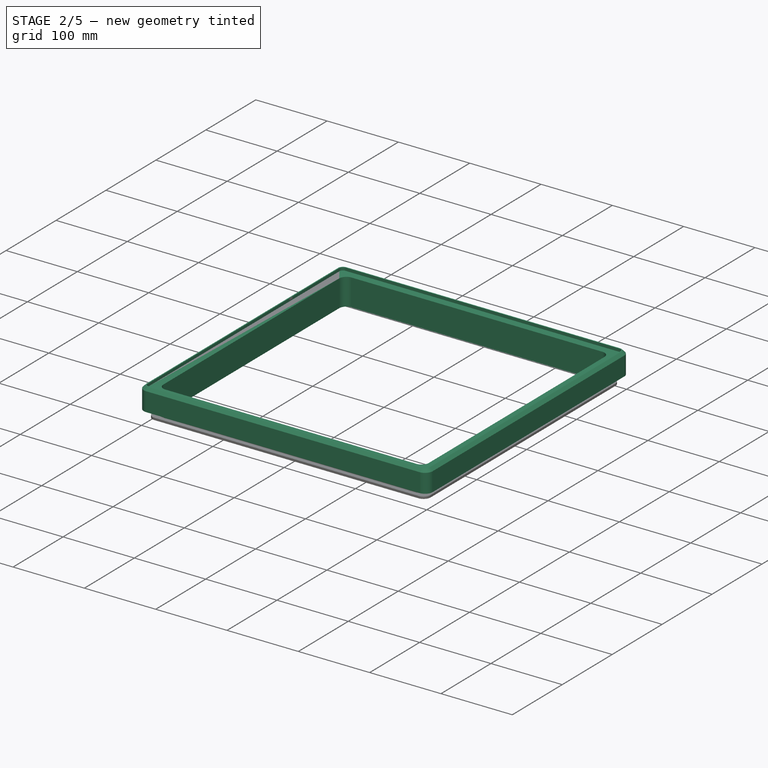
[diagram: stage 2 of 5 — iso view after this stage's code; geometry added in this stage tinted green]
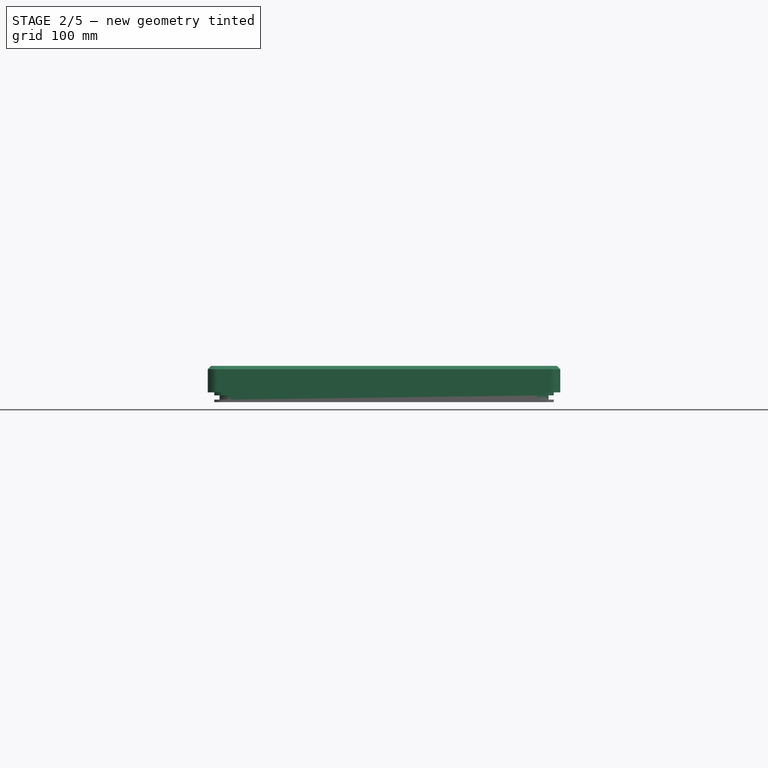
[diagram: stage 2 of 5 — front view after this stage's code; geometry added in this stage tinted green]
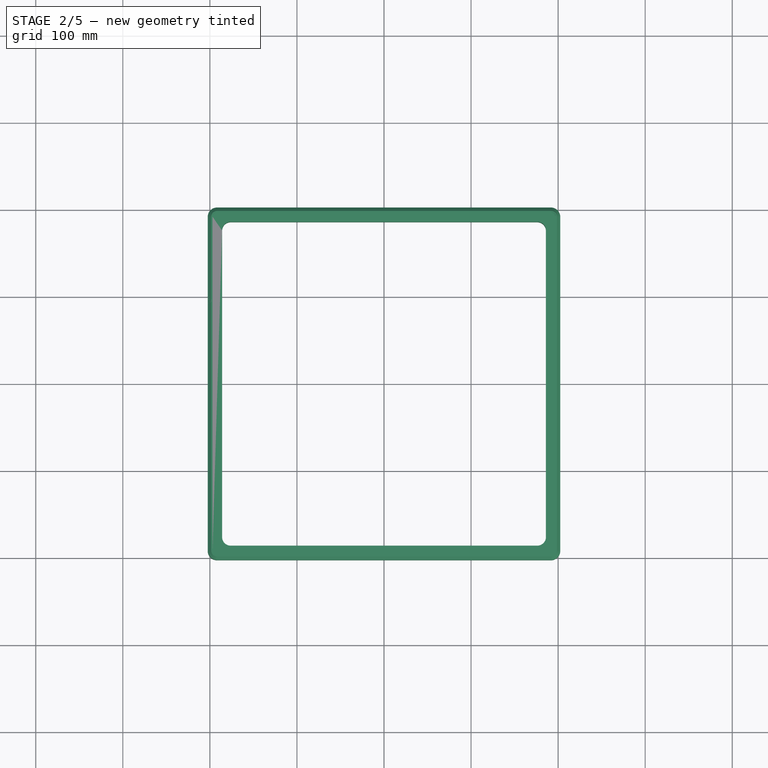
[diagram: stage 2 of 5 — top view after this stage's code; geometry added in this stage tinted green]
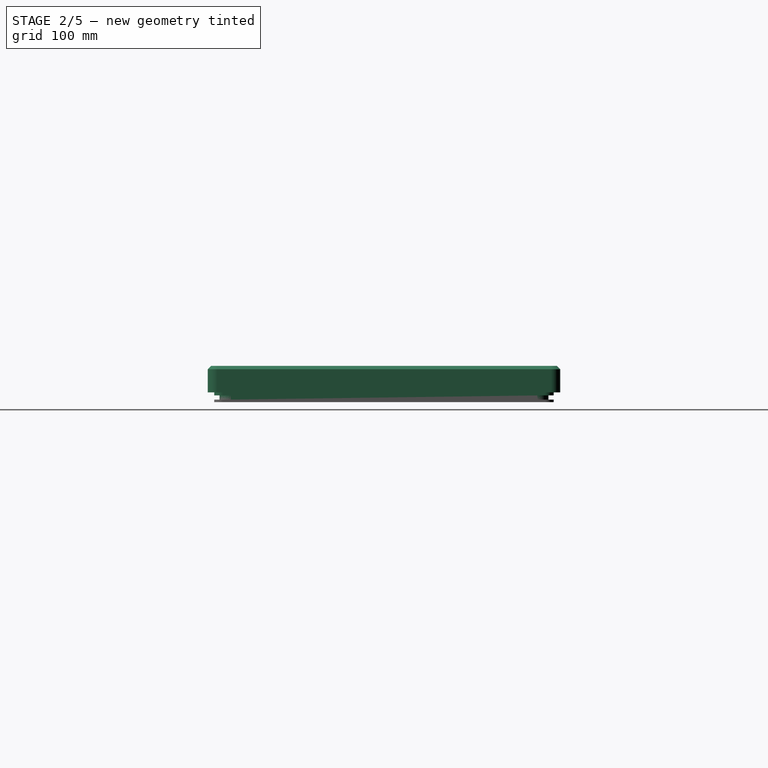
[diagram: stage 2 of 5 — right view after this stage's code; geometry added in this stage tinted green]
FEATURE [Sketcher::SketchObject] Sketch002
  ArcFitTolerance = 1e-06
  AttachmentSupport = -> [Pad001]
  ExternalGeometry = -> [Pad001]
  FullyConstrained = false
  MakeInternals = false
  MapMode = 5
  Placement = pos=(0,0,3) rot=(0,0,1;0rad)
  sketch-geometry (21):
    g0: LineSegment StartX=186 StartY=-176 StartZ=0 EndX=186 EndY=176 EndZ=0
    g1: LineSegment StartX=176 StartY=186 StartZ=0 EndX=-176 EndY=186 EndZ=0
    g2: LineSegment StartX=-186 StartY=176 StartZ=0 EndX=-186 EndY=-176 EndZ=0
    g3: LineSegment StartX=-176 StartY=-186 StartZ=0 EndX=176 EndY=-186 EndZ=0
    g4: GeomPoint [constr] X=0 Y=0 Z=0
    g5: ArcOfCircle CenterX=-176 CenterY=176 CenterZ=0 NormalX=0 NormalY=0 NormalZ=1 AngleXU=0 Radius=10 StartAngle=1.5708 EndAngle=3.14159
    g6: GeomPoint [constr] X=-186 Y=186 Z=0
    g7: ArcOfCircle CenterX=-176 CenterY=-176 CenterZ=0 NormalX=0 NormalY=0 NormalZ=1 AngleXU=0 Radius=10 StartAngle=3.14159 EndAngle=4.71239
    g8: GeomPoint [constr] X=-186 Y=-186 Z=0
    g9: ArcOfCircle CenterX=176 CenterY=176 CenterZ=0 NormalX=0 NormalY=0 NormalZ=1 AngleXU=0 Radius=10 StartAngle=5.92e-14 EndAngle=1.5708
    g10: GeomPoint [constr] X=186 Y=186 Z=0
    g11: ArcOfCircle CenterX=176 CenterY=-176 CenterZ=0 NormalX=0 NormalY=0 NormalZ=1 AngleXU=0 Radius=10 StartAngle=4.71239 EndAngle=6.28319
    g12: GeomPoint [constr] X=186 Y=-186 Z=0
    g13: ArcOfCircle CenterX=176 CenterY=-176 CenterZ=0 NormalX=0 NormalY=0 NormalZ=1 AngleXU=0 Radius=13 StartAngle=4.71239 EndAngle=6.28319
    g14: LineSegment StartX=189 StartY=-176 StartZ=0 EndX=189 EndY=176 EndZ=0
    g15: ArcOfCircle CenterX=176 CenterY=176 CenterZ=0 NormalX=0 NormalY=0 NormalZ=1 AngleXU=0 Radius=13 StartAngle=0 EndAngle=1.5708
    g16: LineSegment StartX=176 StartY=189 StartZ=0 EndX=-176 EndY=189 EndZ=0
    g17: ArcOfCircle CenterX=-176 CenterY=176 CenterZ=0 NormalX=0 NormalY=0 NormalZ=1 AngleXU=0 Radius=13 StartAngle=1.5708 EndAngle=3.14159
    g18: LineSegment StartX=-189 StartY=176 StartZ=0 EndX=-189 EndY=-176 EndZ=0
    g19: ArcOfCircle CenterX=-176 CenterY=-176 CenterZ=0 NormalX=0 NormalY=0 NormalZ=1 AngleXU=0 Radius=13 StartAngle=3.14159 EndAngle=4.71239
    g20: LineSegment StartX=-176 StartY=-189 StartZ=0 EndX=176 EndY=-189 EndZ=0
  constraints (36):
    c: Vertical(g0)
    c: Vertical(g2)
    c: Horizontal(g1)
    c: Horizontal(g3)
    c: Symmetric(g6,g12,g4)
    c: Coincident(g4,g-1)
    c: DistanceX(g6,g10) = 372
    c: DistanceY(g8,g6) = 372
    c: PointOnObject(g6,g1)
    c: PointOnObject(g6,g2)
    c: Tangent(g1,g5) = -1.5708
    c: Tangent(g2,g5) = -1.5708
    c: PointOnObject(g8,g2)
    c: PointOnObject(g8,g3)
    c: Tangent(g2,g7) = -1.5708
    c: Tangent(g3,g7) = -1.5708
    c: PointOnObject(g10,g0)
    c: PointOnObject(g10,g1)
    c: Tangent(g0,g9) = -1.5708
    c: Tangent(g1,g9) = -1.5708
    c: PointOnObject(g12,g0)
    c: PointOnObject(g12,g3)
    c: Tangent(g0,g11) = -1.5708
    c: Tangent(g3,g11) = -1.5708
    c: Equal(g5,g7)
    c: Equal(g7,g11)
    c: Equal(g11,g9)
    c: Radius(g5) = 10
    c: Tangent(g13,g14) = -1.5708
    c: Tangent(g13,g20) = -1.5708
    c: Tangent(g14,g15) = -1.5708
    c: Tangent(g15,g16) = -1.5708
    c: Tangent(g16,g17) = -1.5708
    c: Tangent(g17,g18) = -1.5708
    c: Tangent(g18,g19) = -1.5708
    c: Tangent(g19,g20) = -1.5708
FEATURE [PartDesign::Pad] Pad002
  BaseFeature = -> Pad001
  Direction = (0,0,1)
  Length = 4.75
  Length2 = 10
  Profile = -> Sketch002
  ReferenceAxis = -> Sketch002 [N_Axis]
  Refine = true
  Suppressed = false
  Type = 0
FEATURE [Sketcher::SketchObject] Sketch003
  ArcFitTolerance = 1e-06
  AttachmentSupport = -> [Pad002]
  ExternalGeometry = -> [Pad002]
  FullyConstrained = true
  MakeInternals = false
  MapMode = 5
  Placement = pos=(0,0,7.75) rot=(0,0,1;0rad)
  sketch-geometry (25):
    g0: LineSegment StartX=195 StartY=-185 StartZ=0 EndX=195 EndY=185 EndZ=0
    g1: LineSegment StartX=185 StartY=195 StartZ=0 EndX=-185 EndY=195 EndZ=0
    g2: LineSegment StartX=-195 StartY=185 StartZ=0 EndX=-195 EndY=-185 EndZ=0
    g3: LineSegment StartX=-185 StartY=-195 StartZ=0 EndX=185 EndY=-195 EndZ=0
    g4: GeomPoint [constr] X=0 Y=0 Z=0
    g5: LineSegment StartX=186 StartY=-176 StartZ=0 EndX=186 EndY=176 EndZ=0
    g6: LineSegment StartX=176 StartY=186 StartZ=0 EndX=-176 EndY=186 EndZ=0
    g7: LineSegment StartX=-186 StartY=176 StartZ=0 EndX=-186 EndY=-176 EndZ=0
    g8: LineSegment StartX=-176 StartY=-186 StartZ=0 EndX=176 EndY=-186 EndZ=0
    g9: GeomPoint [constr] X=0 Y=0 Z=0
    g10: ArcOfCircle CenterX=-176 CenterY=176 CenterZ=0 NormalX=0 NormalY=0 NormalZ=1 AngleXU=0 Radius=10 StartAngle=1.5708 EndAngle=3.14159
    g11: ArcOfCircle CenterX=-176 CenterY=-176 CenterZ=0 NormalX=0 NormalY=0 NormalZ=1 AngleXU=0 Radius=10 StartAngle=3.14159 EndAngle=4.71239
    g12: GeomPoint [constr] X=-186 Y=-186 Z=0
    g13: ArcOfCircle CenterX=176 CenterY=-176 CenterZ=0 NormalX=0 NormalY=0 NormalZ=1 AngleXU=0 Radius=10 StartAngle=4.71239 EndAngle=6.28319
    g14: GeomPoint [constr] X=186 Y=-186 Z=0
    g15: ArcOfCircle CenterX=176 CenterY=176 CenterZ=0 NormalX=0 NormalY=0 NormalZ=1 AngleXU=0 Radius=10 StartAngle=0 EndAngle=1.5708
    g16: GeomPoint [constr] X=186 Y=186 Z=0
    g17: ArcOfCircle CenterX=-185 CenterY=185 CenterZ=0 NormalX=0 NormalY=0 NormalZ=1 AngleXU=0 Radius=10 StartAngle=1.5708 EndAngle=3.14159
    g18: GeomPoint [constr] X=-195 Y=195 Z=0
    g19: ArcOfCircle CenterX=185 CenterY=185 CenterZ=0 NormalX=0 NormalY=0 NormalZ=1 AngleXU=0 Radius=10 StartAngle=5e-16 EndAngle=1.5708
    g20: GeomPoint [constr] X=195 Y=195 Z=0
    g21: ArcOfCircle CenterX=185 CenterY=-185 CenterZ=0 NormalX=0 NormalY=0 NormalZ=1 AngleXU=0 Radius=10 StartAngle=4.71239 EndAngle=6.28319
    g22: GeomPoint [constr] X=195 Y=-195 Z=0
    g23: ArcOfCircle CenterX=-185 CenterY=-185 CenterZ=0 NormalX=0 NormalY=0 NormalZ=1 AngleXU=0 Radius=10 StartAngle=3.14159 EndAngle=4.71239
    g24: GeomPoint [constr] X=-195 Y=-195 Z=0
  constraints (55):
    c: Vertical(g0)
    c: Vertical(g2)
    c: Horizontal(g1)
    c: Horizontal(g3)
    c: Symmetric(g18,g22,g4)
    c: Coincident(g4,g-1)
    c: Vertical(g5)
    c: Vertical(g7)
    c: Horizontal(g6)
    c: Horizontal(g8)
    c: Coincident(g9,g4)
    c: DistanceY(g24,g18) = 390
    c: DistanceX(g24,g22) = 390
    c: PointOnObject(g-3,g6)
    c: PointOnObject(g-4,g7)
    c: Tangent(g6,g10) = -1.5708
    c: Tangent(g7,g10) = -1.5708
    c: PointOnObject(g12,g7)
    c: PointOnObject(g12,g8)
    c: Tangent(g7,g11) = -1.5708
    c: Tangent(g8,g11) = -1.5708
    c: PointOnObject(g14,g5)
    c: PointOnObject(g14,g8)
    c: Tangent(g5,g13) = -1.5708
    c: Tangent(g8,g13) = -1.5708
    c: PointOnObject(g16,g5)
    c: PointOnObject(g16,g6)
    c: Tangent(g5,g15) = -1.5708
    c: Tangent(g6,g15) = -1.5708
    c: Equal(g10,g15)
    c: Equal(g15,g13)
    c: PointOnObject(g18,g1)
    c: PointOnObject(g18,g2)
    c: Tangent(g1,g17) = -1.5708
    c: Tangent(g2,g17) = -1.5708
    c: PointOnObject(g20,g0)
    c: PointOnObject(g20,g1)
    c: Tangent(g0,g19) = -1.5708
    c: Tangent(g1,g19) = -1.5708
    c: PointOnObject(g22,g0)
    c: PointOnObject(g22,g3)
    c: Tangent(g0,g21) = -1.5708
    c: Tangent(g3,g21) = -1.5708
    c: PointOnObject(g24,g2)
    c: PointOnObject(g24,g3)
    c: Tangent(g2,g23) = -1.5708
    c: Tangent(g3,g23) = -1.5708
    c: Radius(g17) = 10
    c: Radius(g10) = 10
    c: Equal(g17,g19)
    c: Equal(g21,g19)
    c: Equal(g21,g23)
    c: PointOnObject(g-6,g5)
    c: PointOnObject(g-5,g8)
    c: Equal(g11,g13)
FEATURE [PartDesign::Pad] Pad003
  BaseFeature = -> Pad002
  Direction = (0,0,1)
  Length = 3.5
  Length2 = 10
  Profile = -> Sketch003
  ReferenceAxis = -> Sketch003 [N_Axis]
  Refine = true
  Suppressed = false
  Type = 0
FEATURE [Sketcher::SketchObject] Sketch004
  ArcFitTolerance = 1e-06
  AttachmentSupport = -> [Pad003]
  ExternalGeometry = -> [Pad003]
  FullyConstrained = true
  MakeInternals = false
  MapMode = 5
  Placement = pos=(0,0,11.25) rot=(0,0,1;0rad)
  sketch-geometry (26):
    g0: LineSegment StartX=202.5 StartY=-191.65 StartZ=0 EndX=202.5 EndY=191.65 EndZ=0
    g1: LineSegment StartX=191.65 StartY=202.5 StartZ=0 EndX=-191.65 EndY=202.5 EndZ=0
    g2: LineSegment StartX=-202.5 StartY=191.65 StartZ=0 EndX=-202.5 EndY=-191.65 EndZ=0
    g3: LineSegment StartX=-191.65 StartY=-202.5 StartZ=0 EndX=191.65 EndY=-202.5 EndZ=0
    g4: GeomPoint [constr] X=0 Y=0 Z=0
    g5: ArcOfCircle CenterX=-191.65 CenterY=191.65 CenterZ=0 NormalX=0 NormalY=0 NormalZ=1 AngleXU=0 Radius=10.85 StartAngle=1.5708 EndAngle=3.14159
    g6: GeomPoint [constr] X=-202.5 Y=202.5 Z=0
    g7: ArcOfCircle CenterX=191.65 CenterY=191.65 CenterZ=0 NormalX=0 NormalY=0 NormalZ=1 AngleXU=0 Radius=10.85 StartAngle=-9e-16 EndAngle=1.5708
    g8: GeomPoint [constr] X=202.5 Y=202.5 Z=0
    g9: ArcOfCircle CenterX=191.65 CenterY=-191.65 CenterZ=0 NormalX=0 NormalY=0 NormalZ=1 AngleXU=0 Radius=10.85 StartAngle=4.71239 EndAngle=6.28319
    g10: GeomPoint [constr] X=202.5 Y=-202.5 Z=0
    g11: ArcOfCircle CenterX=-191.65 CenterY=-191.65 CenterZ=0 NormalX=0 NormalY=0 NormalZ=1 AngleXU=0 Radius=10.85 StartAngle=3.14159 EndAngle=4.71239
    g12: GeomPoint [constr] X=-202.5 Y=-202.5 Z=0
    g13: LineSegment StartX=186 StartY=-176 StartZ=0 EndX=186 EndY=176 EndZ=0
    g14: LineSegment StartX=176 StartY=186 StartZ=0 EndX=-176 EndY=186 EndZ=0
    g15: LineSegment StartX=-186 StartY=176 StartZ=0 EndX=-186 EndY=-176 EndZ=0
    g16: LineSegment StartX=-176 StartY=-186 StartZ=0 EndX=176 EndY=-186 EndZ=0
    g17: GeomPoint [constr] X=0 Y=0 Z=0
    g18: ArcOfCircle CenterX=-176 CenterY=176 CenterZ=0 NormalX=0 NormalY=0 NormalZ=1 AngleXU=0 Radius=10 StartAngle=1.5708 EndAngle=3.14159
    g19: GeomPoint [constr] X=-186 Y=186 Z=0
    g20: ArcOfCircle CenterX=-176 CenterY=-176 CenterZ=0 NormalX=0 NormalY=0 NormalZ=1 AngleXU=0 Radius=10 StartAngle=3.14159 EndAngle=4.71239
    g21: GeomPoint [constr] X=-186 Y=-186 Z=0
    g22: ArcOfCircle CenterX=176 CenterY=-176 CenterZ=0 NormalX=0 NormalY=0 NormalZ=1 AngleXU=0 Radius=10 StartAngle=4.71239 EndAngle=6.28319
    g23: GeomPoint [constr] X=186 Y=-186 Z=0
    g24: ArcOfCircle CenterX=176 CenterY=176 CenterZ=0 NormalX=0 NormalY=0 NormalZ=1 AngleXU=0 Radius=10 StartAngle=1e-16 EndAngle=1.5708
    g25: GeomPoint [constr] X=186 Y=186 Z=0
  constraints (56):
    c: Vertical(g0)
    c: Vertical(g2)
    c: Horizontal(g1)
    c: Horizontal(g3)
    c: Symmetric(g6,g10,g4)
    c: Coincident(g4,g-1)
    c: PointOnObject(g6,g1)
    c: PointOnObject(g6,g2)
    c: Tangent(g1,g5) = -1.5708
    c: Tangent(g2,g5) = -1.5708
    c: PointOnObject(g8,g0)
    c: PointOnObject(g8,g1)
    c: Tangent(g0,g7) = -1.5708
    c: Tangent(g1,g7) = -1.5708
    c: PointOnObject(g10,g0)
    c: PointOnObject(g10,g3)
    c: Tangent(g0,g9) = -1.5708
    c: Tangent(g3,g9) = -1.5708
    c: PointOnObject(g12,g2)
    c: PointOnObject(g12,g3)
    c: Tangent(g2,g11) = -1.5708
    c: Tangent(g3,g11) = -1.5708
    c: Vertical(g13)
    c: Vertical(g15)
    c: Horizontal(g14)
    c: Horizontal(g16)
    c: Symmetric(g19,g23,g17)
    c: Coincident(g17,g4)
    c: PointOnObject(g-3,g14)
    c: PointOnObject(g-4,g15)
    c: PointOnObject(g19,g14)
    c: PointOnObject(g19,g15)
    c: Tangent(g14,g18) = -1.5708
    c: Tangent(g15,g18) = -1.5708
    c: PointOnObject(g21,g15)
    c: PointOnObject(g21,g16)
    c: Tangent(g15,g20) = -1.5708
    c: Tangent(g16,g20) = -1.5708
    c: PointOnObject(g23,g13)
    c: PointOnObject(g23,g16)
    c: Tangent(g13,g22) = -1.5708
    c: Tangent(g16,g22) = -1.5708
    c: PointOnObject(g25,g13)
    c: PointOnObject(g25,g14)
    c: Tangent(g13,g24) = -1.5708
    c: Tangent(g14,g24) = -1.5708
    c: Equal(g22,g24)
    c: Equal(g24,g18)
    c: Equal(g18,g20)
    c: Radius(g5) = 10.85
    c: DistanceY(g12,g6) = 405
    c: DistanceX(g12,g10) = 405
    c: Radius(g18) = 10
    c: Equal(g5,g7)
    c: Equal(g11,g9)
    c: Equal(g7,g9)
FEATURE [PartDesign::Pad] Pad004
  BaseFeature = -> Pad003
  Direction = (0,0,1)
  Length = 30.5
  Length2 = 10
  Profile = -> Sketch004
  ReferenceAxis = -> Sketch004 [N_Axis]
  Refine = true
  Suppressed = false
  Type = 0
FEATURE [PartDesign::Chamfer] Chamfer
  Angle = 45
  Base = -> Pad004 [Edge7,Edge6,Edge5,Edge3,Edge4,Edge2,Edge1]
  BaseFeature = -> Pad004
  ChamferType = 0
  FlipDirection = false
  Refine = true
  Size = 4
  Size2 = 1
  SupportTransform = false
  Suppressed = false
  UseAllEdges = false
FEATURE [Sketcher::SketchObject] Sketch005
  ArcFitTolerance = 1e-06
  AttachmentSupport = -> [Chamfer]
  ExternalGeometry = -> [Chamfer]
  FullyConstrained = true
  MakeInternals = false
  MapMode = 5
  Placement = pos=(0,0,41.75) rot=(0,0,1;0rad)
  sketch-geometry (13):
    g0: LineSegment StartX=-192 StartY=-197 StartZ=0 EndX=192 EndY=-197 EndZ=0
    g1: LineSegment StartX=197 StartY=-192 StartZ=0 EndX=197 EndY=192 EndZ=0
    g2: LineSegment StartX=192 StartY=197 StartZ=0 EndX=-192 EndY=197 EndZ=0
    g3: LineSegment StartX=-197 StartY=192 StartZ=0 EndX=-197 EndY=-192 EndZ=0
    g4: GeomPoint [constr] X=0 Y=0 Z=0
    g5: ArcOfCircle CenterX=-192 CenterY=192 CenterZ=0 NormalX=0 NormalY=0 NormalZ=1 AngleXU=0 Radius=5 StartAngle=1.5708 EndAngle=3.14159
    g6: GeomPoint [constr] X=-197 Y=197 Z=0
    g7: ArcOfCircle CenterX=192 CenterY=192 CenterZ=0 NormalX=0 NormalY=0 NormalZ=1 AngleXU=0 Radius=5 StartAngle=-9e-16 EndAngle=1.5708
    g8: GeomPoint [constr] X=197 Y=197 Z=0
    g9: ArcOfCircle CenterX=192 CenterY=-192 CenterZ=0 NormalX=0 NormalY=0 NormalZ=1 AngleXU=0 Radius=5 StartAngle=4.71239 EndAngle=6.28319
    g10: GeomPoint [constr] X=197 Y=-197 Z=0
    g11: ArcOfCircle CenterX=-192 CenterY=-192 CenterZ=0 NormalX=0 NormalY=0 NormalZ=1 AngleXU=0 Radius=5 StartAngle=3.14159 EndAngle=4.71239
    g12: GeomPoint [constr] X=-197 Y=-197 Z=0
  constraints (28):
    c: Horizontal(g0)
    c: Horizontal(g2)
    c: Vertical(g1)
    c: Vertical(g3)
    c: Symmetric(g8,g12,g4)
    c: Distance(g10,g12) = 394
    c: Coincident(g4,g-1)
    c: PointOnObject(g6,g2)
    c: PointOnObject(g6,g3)
    c: Tangent(g2,g5) = -1.5708
    c: Tangent(g3,g5) = -1.5708
    c: PointOnObject(g8,g1)
    c: PointOnObject(g8,g2)
    c: Tangent(g1,g7) = -1.5708
    c: Tangent(g2,g7) = -1.5708
    c: PointOnObject(g10,g0)
    c: PointOnObject(g10,g1)
    c: Tangent(g0,g9) = -1.5708
    c: Tangent(g1,g9) = -1.5708
    c: PointOnObject(g12,g0)
    c: PointOnObject(g12,g3)
    c: Tangent(g0,g11) = -1.5708
    c: Tangent(g3,g11) = -1.5708
    c: Equal(g5,g11)
    c: Equal(g9,g11)
    c: Equal(g7,g9)
    c: Radius(g5) = 5
    c: Equal(g0,g3)
FEATURE [PartDesign::Pocket] Pocket
  BaseFeature = -> Chamfer
  Direction = (0,0,-1)
  Length = 4
  Length2 = 5
  Profile = -> Sketch005
  ReferenceAxis = -> Sketch005 [N_Axis]
  Refine = true
  Suppressed = false
  Type = 0
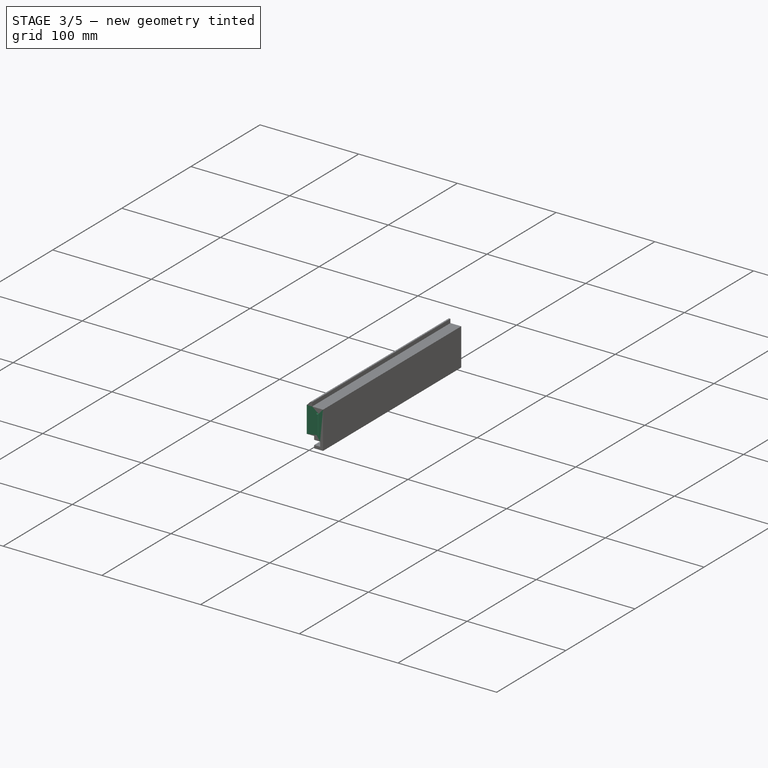
[diagram: stage 3 of 5 — iso view after this stage's code; geometry added in this stage tinted green]
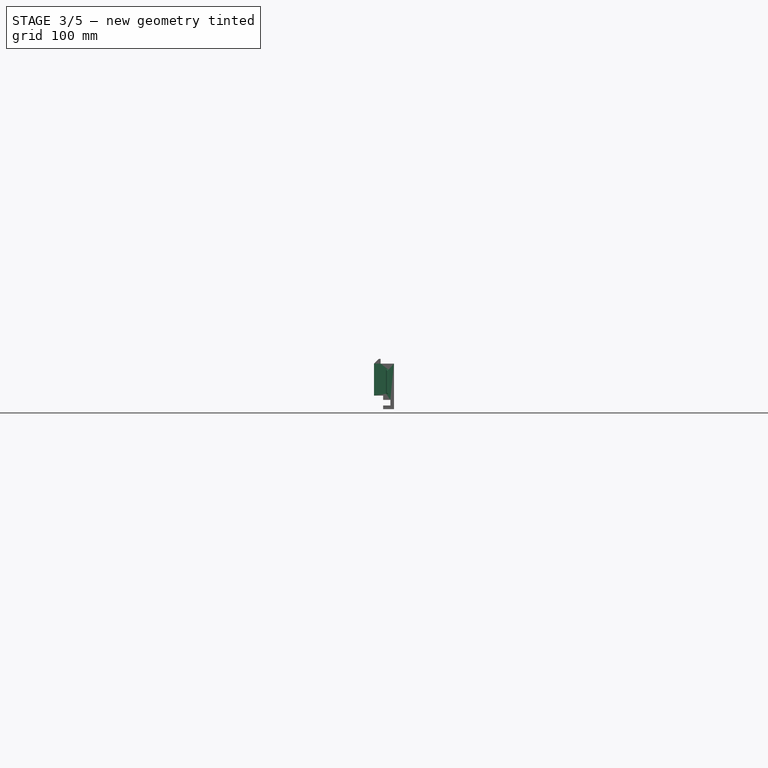
[diagram: stage 3 of 5 — front view after this stage's code; geometry added in this stage tinted green]
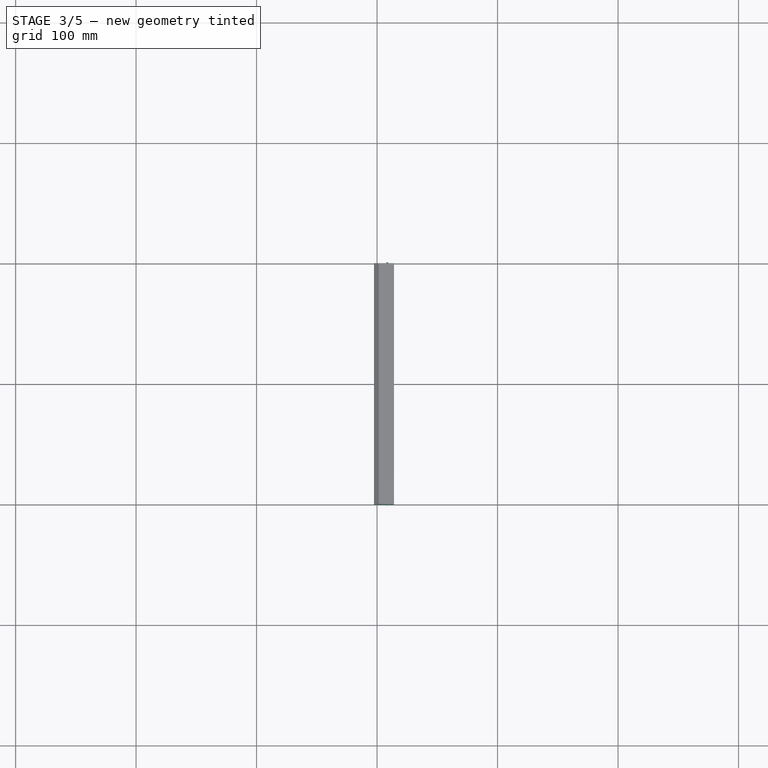
[diagram: stage 3 of 5 — top view after this stage's code; geometry added in this stage tinted green]
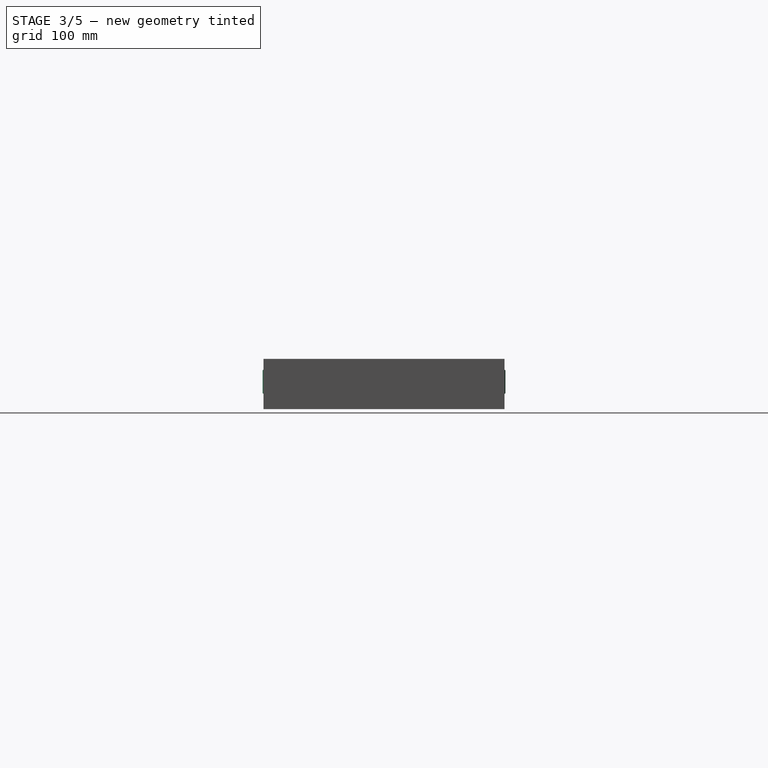
[diagram: stage 3 of 5 — right view after this stage's code; geometry added in this stage tinted green]
FEATURE [PartDesign::FeatureBase] Clone001
  BaseFeature = -> Pocket
  Suppressed = false
FEATURE [Sketcher::SketchObject] Sketch007
  ArcFitTolerance = 1e-06
  AttachmentSupport = -> [XY_Plane003]
  FullyConstrained = false
  MakeInternals = false
  MapMode = 5
  sketch-geometry (12):
    g0: LineSegment StartX=-243.575 StartY=100 StartZ=0 EndX=-243.575 EndY=-99.9999 EndZ=0
    g1: LineSegment StartX=-243.575 StartY=-99.9999 StartZ=0 EndX=-100 EndY=-99.9999 EndZ=0
    g2: LineSegment StartX=-100 StartY=-99.9999 StartZ=0 EndX=-100 EndY=100 EndZ=0
    g3: LineSegment StartX=-100 StartY=100 StartZ=0 EndX=-243.575 EndY=100 EndZ=0
    g4: LineSegment [constr] StartX=-100 StartY=100 StartZ=0 EndX=0 EndY=100 EndZ=0
    g5: LineSegment [constr] StartX=0 StartY=100 StartZ=0 EndX=0 EndY=0 EndZ=0
    g6: LineSegment [constr] StartX=0 StartY=0 StartZ=0 EndX=0 EndY=-100 EndZ=0
    g7: LineSegment [constr] StartX=0 StartY=-100 StartZ=0 EndX=-100 EndY=-99.9999 EndZ=0
    g8: LineSegment StartX=-299.757 StartY=246.684 StartZ=0 EndX=-299.757 EndY=-247.759 EndZ=0
    g9: LineSegment StartX=-299.757 StartY=-247.759 StartZ=0 EndX=242.153 EndY=-247.759 EndZ=0
    g10: LineSegment StartX=242.153 StartY=-247.759 StartZ=0 EndX=242.153 EndY=246.684 EndZ=0
    g11: LineSegment StartX=242.153 StartY=246.684 StartZ=0 EndX=-299.757 EndY=246.684 EndZ=0
  constraints (29):
    c: Coincident(g0,g1)
    c: Coincident(g1,g2)
    c: Coincident(g2,g3)
    c: Coincident(g3,g0)
    c: Vertical(g0)
    c: Vertical(g2)
    c: Horizontal(g1)
    c: Horizontal(g3)
    c: Coincident(g4,g2)
    c: PointOnObject(g4,g-2)
    c: Horizontal(g4)
    c: Coincident(g5,g4)
    c: Coincident(g5,g-1)
    c: Coincident(g6,g5)
    c: PointOnObject(g6,g-2)
    c: Coincident(g7,g6)
    c: Coincident(g7,g1)
    c: Equal(g5,g6)
    c: DistanceX(g4,g4) = 100
    c: Coincident(g8,g9)
    c: Coincident(g9,g10)
    c: Coincident(g10,g11)
    c: Coincident(g11,g8)
    c: Vertical(g8)
    c: Vertical(g10)
    c: Horizontal(g9)
    c: Horizontal(g11)
    c: Equal(g4,g7)
    c: DistanceY(g5,g5) = 100
FEATURE [PartDesign::Pocket] Pocket002
  BaseFeature = -> Clone001
  Direction = (0,0,-1)
  Length = 5
  Length2 = 5
  Profile = -> Sketch007
  ReferenceAxis = -> Sketch007 [N_Axis]
  Refine = true
  Reversed = true
  Suppressed = false
  Type = 1
FEATURE [PartDesign::Body] Body002  label="K1 Max Glass Riser - Corner"
  AllowCompound = false
  Group = -> [Clone,Sketch006,Pocket001,Sketch008,Pocket003,DatumPlane,Mirrored]
  Origin = -> Origin002
  Tip = -> Mirrored
FEATURE [Sketcher::SketchObject] Sketch009
  ArcFitTolerance = 1e-06
  AttachmentSupport = -> [Pocket002]
  ExternalGeometry = -> [Pocket002]
  FullyConstrained = true
  MakeInternals = false
  MapMode = 5
  Placement = pos=(0,100,0) rot=(0,0.707107,0.707107;3.14159rad)
  sketch-geometry (7):
    g0: LineSegment [constr] StartX=191.5 StartY=37.75 StartZ=0 EndX=191.5 EndY=22.75 EndZ=0
    g1: LineSegment [constr] StartX=191.5 StartY=22.75 StartZ=0 EndX=191.5 EndY=7.75 EndZ=0
    g2: LineSegment StartX=190.5 StartY=12.75 StartZ=0 EndX=192.5 EndY=12.75 EndZ=0
    g3: LineSegment StartX=192.5 StartY=12.75 StartZ=0 EndX=192.5 EndY=32.75 EndZ=0
    g4: LineSegment StartX=192.5 StartY=32.75 StartZ=0 EndX=190.5 EndY=32.75 EndZ=0
    g5: LineSegment StartX=190.5 StartY=32.75 StartZ=0 EndX=190.5 EndY=12.75 EndZ=0
    g6: GeomPoint [constr] X=191.5 Y=22.75 Z=0
  constraints (18):
    c: Symmetric(g-3,g-3,g0)
    c: Vertical(g0)
    c: Coincident(g0,g1)
    c: PointOnObject(g1,g-4)
    c: Vertical(g1)
    c: Equal(g0,g1)
    c: Coincident(g2,g3)
    c: Coincident(g3,g4)
    c: Coincident(g4,g5)
    c: Coincident(g5,g2)
    c: Horizontal(g2)
    c: Horizontal(g4)
    c: Vertical(g3)
    c: Vertical(g5)
    c: Symmetric(g4,g2,g6)
    c: Coincident(g6,g0)
    c: Distance(g4,g4) = 2
    c: DistanceY(g3,g3) = 20
FEATURE [PartDesign::Pad] Pad005
  BaseFeature = -> Pocket002
  Direction = (0,1,-2e-16)
  Length = 0.75
  Length2 = 10
  Profile = -> Sketch009
  ReferenceAxis = -> Sketch009 [N_Axis]
  Refine = true
  Suppressed = false
  TaperAngle = -30
  Type = 0
FEATURE [PartDesign::Mirrored] Mirrored001
  BaseFeature = -> Pad005
  MirrorPlane = -> XZ_Plane003
  Originals = -> [Pad005]
  Refine = true
  Suppressed = false
  TransformMode = 0
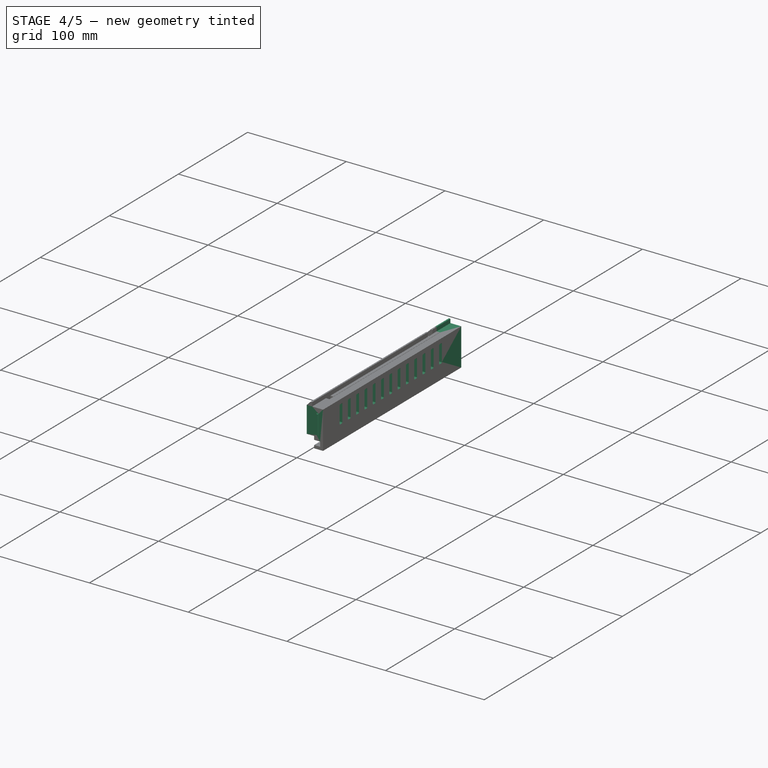
[diagram: stage 4 of 5 — iso view after this stage's code; geometry added in this stage tinted green]
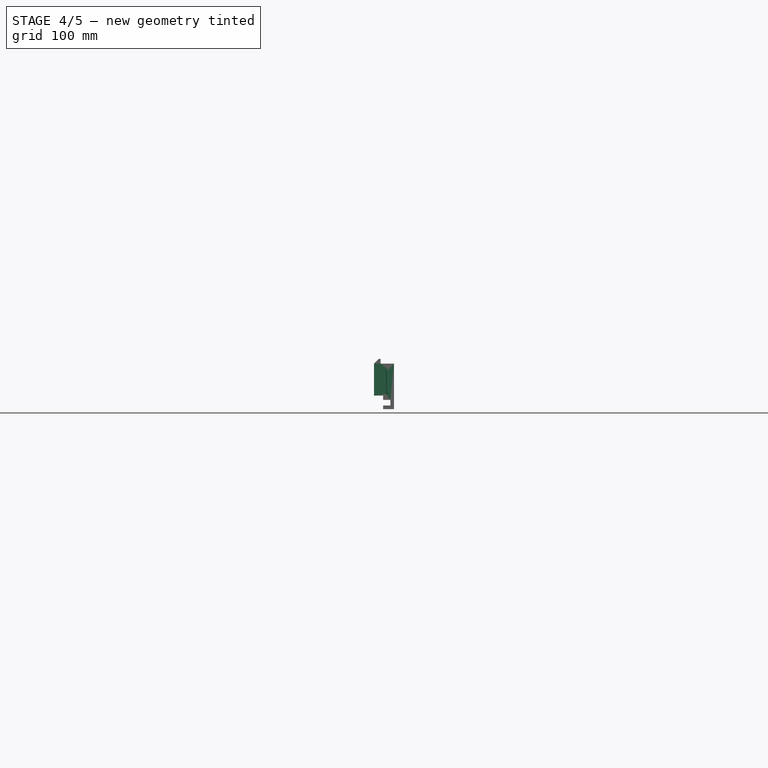
[diagram: stage 4 of 5 — front view after this stage's code; geometry added in this stage tinted green]
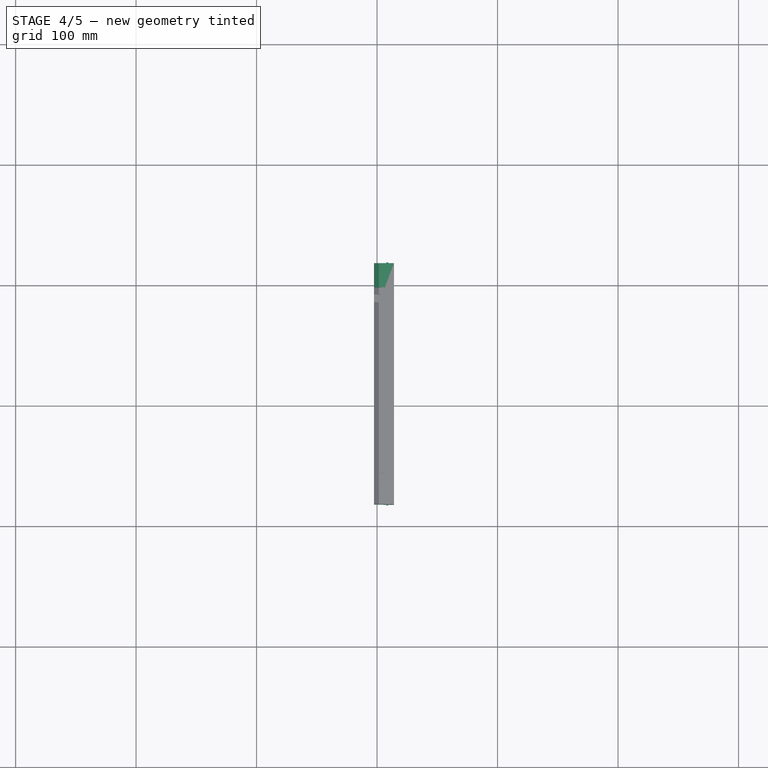
[diagram: stage 4 of 5 — top view after this stage's code; geometry added in this stage tinted green]
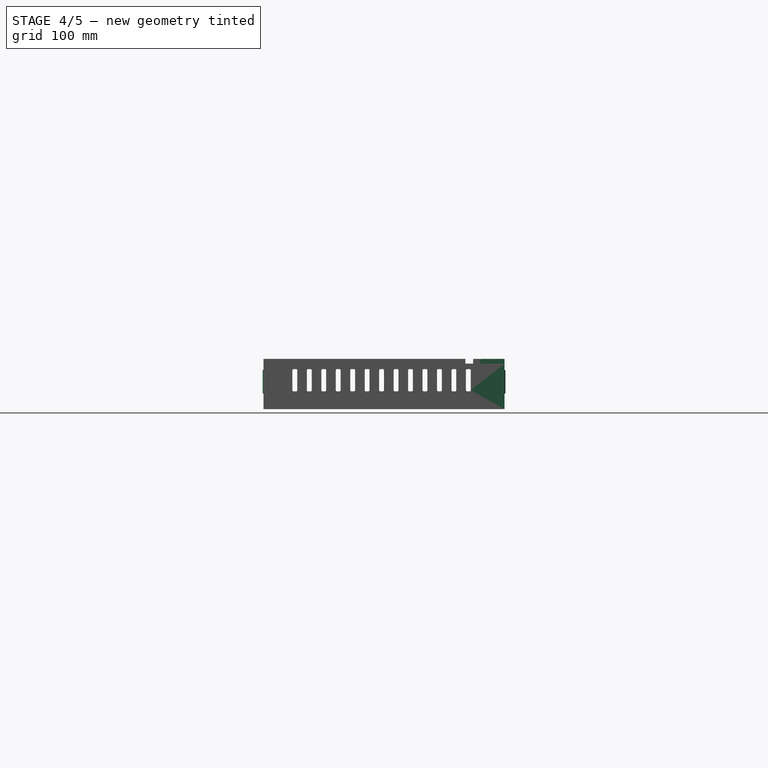
[diagram: stage 4 of 5 — right view after this stage's code; geometry added in this stage tinted green]
FEATURE [PartDesign::Body] Body003  label="K1 Max Glass Riser - Side"
  AllowCompound = false
  Group = -> [Clone001,Sketch007,Pocket002,Sketch009,Pad005,Mirrored001]
  Origin = -> Origin003
  Placement = pos=(0,18,0) rot=(0,0,1;0rad)
  Tip = -> Mirrored001
FEATURE [Measure::MeasureLength] Length  label="Length: 200.00 mm"
  Elements = -> [Body003]
  Length = 200
FEATURE [PartDesign::FeatureBase] Clone002
  BaseFeature = -> Body003
  Placement = pos=(0,18,0) rot=(0,0,1;0rad)
  Suppressed = false
FEATURE [Sketcher::SketchObject] Sketch010
  ArcFitTolerance = 1e-06
  AttachmentSupport = -> [Clone002]
  ExternalGeometry = -> [Clone002]
  FullyConstrained = true
  MakeInternals = false
  MapMode = 5
  Placement = pos=(0,18,41.75) rot=(0,0,1;0rad)
  sketch-geometry (4):
    g0: LineSegment StartX=-197 StartY=80 StartZ=0 EndX=-202.5 EndY=80 EndZ=0
    g1: LineSegment StartX=-202.5 StartY=80 StartZ=0 EndX=-202.5 EndY=67.5 EndZ=0
    g2: LineSegment StartX=-202.5 StartY=67.5 StartZ=0 EndX=-197 EndY=67.5 EndZ=0
    g3: LineSegment StartX=-197 StartY=67.5 StartZ=0 EndX=-197 EndY=80 EndZ=0
  constraints (12):
    c: Coincident(g0,g1)
    c: Coincident(g1,g2)
    c: Coincident(g2,g3)
    c: Coincident(g3,g0)
    c: Horizontal(g0)
    c: Horizontal(g2)
    c: Vertical(g1)
    c: Vertical(g3)
    c: PointOnObject(g0,g-5)
    c: PointOnObject(g1,g-4)
    c: DistanceY(g1,g1) = 12.5
    c: Distance(g-3,g0) = 20
FEATURE [PartDesign::Pocket] Pocket004
  BaseFeature = -> Clone002
  Direction = (0,0,-1)
  Length = 7
  Length2 = 5
  Placement = pos=(0,18,0) rot=(0,0,1;0rad)
  Profile = -> Sketch010
  ReferenceAxis = -> Sketch010 [N_Axis]
  Refine = true
  Suppressed = false
  Type = 0
FEATURE [Sketcher::SketchObject] Sketch011
  ArcFitTolerance = 1e-06
  AttachmentSupport = -> [Pocket004]
  ExternalGeometry = -> [Pocket004]
  FullyConstrained = false
  MakeInternals = false
  MapMode = 5
  Placement = pos=(0,18,37.75) rot=(0,0,1;0rad)
  sketch-geometry (6):
    g0: LineSegment StartX=-197 StartY=80 StartZ=0 EndX=-197 EndY=-79.9999 EndZ=0
    g1: LineSegment StartX=-197 StartY=-79.9999 StartZ=0 EndX=-193.5 EndY=-79.9999 EndZ=0
    g2: LineSegment StartX=-193.5 StartY=-79.9999 StartZ=0 EndX=-193.5 EndY=80 EndZ=0
    g3: LineSegment StartX=-193.5 StartY=80 StartZ=0 EndX=-197 EndY=80 EndZ=0
    g4: LineSegment [constr] StartX=-194.831 StartY=80 StartZ=0 EndX=-194.831 EndY=100 EndZ=0
    g5: LineSegment [constr] StartX=-195.531 StartY=-79.9999 StartZ=0 EndX=-195.531 EndY=-99.9999 EndZ=0
  constraints (17):
    c: Coincident(g0,g1)
    c: Coincident(g1,g2)
    c: Coincident(g2,g3)
    c: Coincident(g3,g0)
    c: Vertical(g0)
    c: Vertical(g2)
    c: Horizontal(g1)
    c: Horizontal(g3)
    c: Coincident(g0,g-4)
    c: DistanceX(g3,g3) = 3.5
    c: PointOnObject(g4,g3)
    c: PointOnObject(g4,g-3)
    c: Vertical(g4)
    c: PointOnObject(g5,g1)
    c: Vertical(g5)
    c: PointOnObject(g5,g-5)
    c: Equal(g5,g4)
FEATURE [PartDesign::Pocket] Pocket005
  BaseFeature = -> Pocket004
  Direction = (0,0,-1)
  Length = 0
  Length2 = 5
  Offset = -2
  Placement = pos=(0,18,0) rot=(0,0,1;0rad)
  Profile = -> Sketch011
  ReferenceAxis = -> Sketch011 [N_Axis]
  Refine = true
  Suppressed = false
  Type = 3
  UpToFace = -> Pocket004 [Face15]
FEATURE [Sketcher::SketchObject] Sketch012
  ArcFitTolerance = 1e-06
  AttachmentSupport = -> [Pocket005]
  ExternalGeometry = -> [Pocket005]
  FullyConstrained = false
  MakeInternals = false
  MapMode = 5
  Placement = pos=(-202.5,18,0) rot=(0.57735,-0.57735,-0.57735;2.0944rad)
  sketch-geometry (105):
    g0: LineSegment [constr] StartX=-80 StartY=34.75 StartZ=0 EndX=-80 EndY=13.25 EndZ=0
    g1: LineSegment StartX=-71 StartY=14.75 StartZ=0 EndX=-69 EndY=14.75 EndZ=0
    g2: LineSegment StartX=-68 StartY=15.75 StartZ=0 EndX=-68 EndY=32.25 EndZ=0
    g3: LineSegment StartX=-69 StartY=33.25 StartZ=0 EndX=-71 EndY=33.25 EndZ=0
    g4: LineSegment StartX=-72 StartY=32.25 StartZ=0 EndX=-72 EndY=15.75 EndZ=0
    g5: ArcOfCircle CenterX=-71 CenterY=15.75 CenterZ=0 NormalX=0 NormalY=0 NormalZ=1 AngleXU=0 Radius=1 StartAngle=3.14159 EndAngle=4.71239
    g6: ArcOfCircle CenterX=-69 CenterY=15.75 CenterZ=0 NormalX=0 NormalY=0 NormalZ=1 AngleXU=0 Radius=1 StartAngle=4.71239 EndAngle=6.28319
    g7: ArcOfCircle CenterX=-69 CenterY=32.25 CenterZ=0 NormalX=0 NormalY=0 NormalZ=1 AngleXU=0 Radius=1 StartAngle=0 EndAngle=1.5708
    g8: ArcOfCircle CenterX=-71 CenterY=32.25 CenterZ=0 NormalX=0 NormalY=0 NormalZ=1 AngleXU=0 Radius=1 StartAngle=1.5708 EndAngle=3.14159
    g9: LineSegment StartX=-59 StartY=14.75 StartZ=0 EndX=-57 EndY=14.75 EndZ=0
    g10: LineSegment StartX=-56 StartY=15.75 StartZ=0 EndX=-56 EndY=32.25 EndZ=0
    g11: LineSegment StartX=-57 StartY=33.25 StartZ=0 EndX=-59 EndY=33.25 EndZ=0
    g12: LineSegment StartX=-60 StartY=32.25 StartZ=0 EndX=-60 EndY=15.75 EndZ=0
    g13: ArcOfCircle CenterX=-59 CenterY=15.75 CenterZ=0 NormalX=0 NormalY=0 NormalZ=1 AngleXU=0 Radius=1 StartAngle=3.14159 EndAngle=4.71239
    g14: ArcOfCircle CenterX=-57 CenterY=15.75 CenterZ=0 NormalX=0 NormalY=0 NormalZ=1 AngleXU=0 Radius=1 StartAngle=4.71239 EndAngle=6.28319
    g15: ArcOfCircle CenterX=-57 CenterY=32.25 CenterZ=0 NormalX=0 NormalY=0 NormalZ=1 AngleXU=0 Radius=1 StartAngle=0 EndAngle=1.5708
    g16: ArcOfCircle CenterX=-59 CenterY=32.25 CenterZ=0 NormalX=0 NormalY=0 NormalZ=1 AngleXU=0 Radius=1 StartAngle=1.5708 EndAngle=3.14159
    g17: LineSegment StartX=-47 StartY=14.75 StartZ=0 EndX=-45 EndY=14.75 EndZ=0
    g18: LineSegment StartX=-44 StartY=15.75 StartZ=0 EndX=-44 EndY=32.25 EndZ=0
    g19: LineSegment StartX=-45 StartY=33.25 StartZ=0 EndX=-47 EndY=33.25 EndZ=0
    g20: LineSegment StartX=-48 StartY=32.25 StartZ=0 EndX=-48 EndY=15.75 EndZ=0
    g21: ArcOfCircle CenterX=-47 CenterY=15.75 CenterZ=0 NormalX=0 NormalY=0 NormalZ=1 AngleXU=0 Radius=1 StartAngle=3.14159 EndAngle=4.71239
    g22: ArcOfCircle CenterX=-45 CenterY=15.75 CenterZ=0 NormalX=0 NormalY=0 NormalZ=1 AngleXU=0 Radius=1 StartAngle=4.71239 EndAngle=6.28319
    g23: ArcOfCircle CenterX=-45 CenterY=32.25 CenterZ=0 NormalX=0 NormalY=0 NormalZ=1 AngleXU=0 Radius=1 StartAngle=0 EndAngle=1.5708
    g24: ArcOfCircle CenterX=-47 CenterY=32.25 CenterZ=0 NormalX=0 NormalY=0 NormalZ=1 AngleXU=0 Radius=1 StartAngle=1.5708 EndAngle=3.14159
    g25: LineSegment StartX=-35 StartY=14.75 StartZ=0 EndX=-33 EndY=14.75 EndZ=0
    g26: LineSegment StartX=-32 StartY=15.75 StartZ=0 EndX=-32 EndY=32.25 EndZ=0
    g27: LineSegment StartX=-33 StartY=33.25 StartZ=0 EndX=-35 EndY=33.25 EndZ=0
    g28: LineSegment StartX=-36 StartY=32.25 StartZ=0 EndX=-36 EndY=15.75 EndZ=0
    g29: ArcOfCircle CenterX=-35 CenterY=15.75 CenterZ=0 NormalX=0 NormalY=0 NormalZ=1 AngleXU=0 Radius=1 StartAngle=3.14159 EndAngle=4.71239
    g30: ArcOfCircle CenterX=-33 CenterY=15.75 CenterZ=0 NormalX=0 NormalY=0 NormalZ=1 AngleXU=0 Radius=1 StartAngle=4.71239 EndAngle=6.28319
    g31: ArcOfCircle CenterX=-33 CenterY=32.25 CenterZ=0 NormalX=0 NormalY=0 NormalZ=1 AngleXU=0 Radius=1 StartAngle=0 EndAngle=1.5708
    g32: ArcOfCircle CenterX=-35 CenterY=32.25 CenterZ=0 NormalX=0 NormalY=0 NormalZ=1 AngleXU=0 Radius=1 StartAngle=1.5708 EndAngle=3.14159
    g33: LineSegment StartX=-23 StartY=14.75 StartZ=0 EndX=-21 EndY=14.75 EndZ=0
    g34: LineSegment StartX=-20 StartY=15.75 StartZ=0 EndX=-20 EndY=32.25 EndZ=0
    g35: LineSegment StartX=-21 StartY=33.25 StartZ=0 EndX=-23 EndY=33.25 EndZ=0
    g36: LineSegment StartX=-24 StartY=32.25 StartZ=0 EndX=-24 EndY=15.75 EndZ=0
    g37: ArcOfCircle CenterX=-23 CenterY=15.75 CenterZ=0 NormalX=0 NormalY=0 NormalZ=1 AngleXU=0 Radius=1 StartAngle=3.14159 EndAngle=4.71239
    g38: ArcOfCircle CenterX=-21 CenterY=15.75 CenterZ=0 NormalX=0 NormalY=0 NormalZ=1 AngleXU=0 Radius=1 StartAngle=4.71239 EndAngle=6.28319
    g39: ArcOfCircle CenterX=-21 CenterY=32.25 CenterZ=0 NormalX=0 NormalY=0 NormalZ=1 AngleXU=0 Radius=1 StartAngle=0 EndAngle=1.5708
    g40: ArcOfCircle CenterX=-23 CenterY=32.25 CenterZ=0 NormalX=0 NormalY=0 NormalZ=1 AngleXU=0 Radius=1 StartAngle=1.5708 EndAngle=3.14159
    g41: LineSegment StartX=-11 StartY=14.75 StartZ=0 EndX=-9 EndY=14.75 EndZ=0
    g42: LineSegment StartX=-8 StartY=15.75 StartZ=0 EndX=-8 EndY=32.25 EndZ=0
    g43: LineSegment StartX=-9 StartY=33.25 StartZ=0 EndX=-11 EndY=33.25 EndZ=0
    g44: LineSegment StartX=-12 StartY=32.25 StartZ=0 EndX=-12 EndY=15.75 EndZ=0
    g45: ArcOfCircle CenterX=-11 CenterY=15.75 CenterZ=0 NormalX=0 NormalY=0 NormalZ=1 AngleXU=0 Radius=1 StartAngle=3.14159 EndAngle=4.71239
    g46: ArcOfCircle CenterX=-9 CenterY=15.75 CenterZ=0 NormalX=0 NormalY=0 NormalZ=1 AngleXU=0 Radius=1 StartAngle=4.71239 EndAngle=6.28319
    g47: ArcOfCircle CenterX=-9 CenterY=32.25 CenterZ=0 NormalX=0 NormalY=0 NormalZ=1 AngleXU=0 Radius=1 StartAngle=0 EndAngle=1.5708
    g48: ArcOfCircle CenterX=-11 CenterY=32.25 CenterZ=0 NormalX=0 NormalY=0 NormalZ=1 AngleXU=0 Radius=1 StartAngle=1.5708 EndAngle=3.14159
    g49: LineSegment StartX=1 StartY=14.75 StartZ=0 EndX=3 EndY=14.75 EndZ=0
    g50: LineSegment StartX=4 StartY=15.75 StartZ=0 EndX=4 EndY=32.25 EndZ=0
    g51: LineSegment StartX=3 StartY=33.25 StartZ=0 EndX=1 EndY=33.25 EndZ=0
    g52: LineSegment StartX=5.95e-14 StartY=32.25 StartZ=0 EndX=5.95e-14 EndY=15.75 EndZ=0
    g53: ArcOfCircle CenterX=1 CenterY=15.75 CenterZ=0 NormalX=0 NormalY=0 NormalZ=1 AngleXU=0 Radius=1 StartAngle=3.14159 EndAngle=4.71239
    g54: ArcOfCircle CenterX=3 CenterY=15.75 CenterZ=0 NormalX=0 NormalY=0 NormalZ=1 AngleXU=0 Radius=1 StartAngle=4.71239 EndAngle=6.28319
    g55: ArcOfCircle CenterX=3 CenterY=32.25 CenterZ=0 NormalX=0 NormalY=0 NormalZ=1 AngleXU=0 Radius=1 StartAngle=0 EndAngle=1.5708
    g56: ArcOfCircle CenterX=1 CenterY=32.25 CenterZ=0 NormalX=0 NormalY=0 NormalZ=1 AngleXU=0 Radius=1 StartAngle=1.5708 EndAngle=3.14159
    g57: LineSegment StartX=13 StartY=14.75 StartZ=0 EndX=15 EndY=14.75 EndZ=0
    g58: LineSegment StartX=16 StartY=15.75 StartZ=0 EndX=16 EndY=32.25 EndZ=0
    g59: LineSegment StartX=15 StartY=33.25 StartZ=0 EndX=13 EndY=33.25 EndZ=0
    g60: LineSegment StartX=12 StartY=32.25 StartZ=0 EndX=12 EndY=15.75 EndZ=0
    g61: ArcOfCircle CenterX=13 CenterY=15.75 CenterZ=0 NormalX=0 NormalY=0 NormalZ=1 AngleXU=0 Radius=1 StartAngle=3.14159 EndAngle=4.71239
    g62: ArcOfCircle CenterX=15 CenterY=15.75 CenterZ=0 NormalX=0 NormalY=0 NormalZ=1 AngleXU=0 Radius=1 StartAngle=4.71239 EndAngle=6.28319
    g63: ArcOfCircle CenterX=15 CenterY=32.25 CenterZ=0 NormalX=0 NormalY=0 NormalZ=1 AngleXU=0 Radius=1 StartAngle=0 EndAngle=1.5708
    g64: ArcOfCircle CenterX=13 CenterY=32.25 CenterZ=0 NormalX=0 NormalY=0 NormalZ=1 AngleXU=0 Radius=1 StartAngle=1.5708 EndAngle=3.14159
    g65: LineSegment StartX=25 StartY=14.75 StartZ=0 EndX=27 EndY=14.75 EndZ=0
    g66: LineSegment StartX=28 StartY=15.75 StartZ=0 EndX=28 EndY=32.25 EndZ=0
    g67: LineSegment StartX=27 StartY=33.25 StartZ=0 EndX=25 EndY=33.25 EndZ=0
    g68: LineSegment StartX=24 StartY=32.25 StartZ=0 EndX=24 EndY=15.75 EndZ=0
    g69: ArcOfCircle CenterX=25 CenterY=15.75 CenterZ=0 NormalX=0 NormalY=0 NormalZ=1 AngleXU=0 Radius=1 StartAngle=3.14159 EndAngle=4.71239
    g70: ArcOfCircle CenterX=27 CenterY=15.75 CenterZ=0 NormalX=0 NormalY=0 NormalZ=1 AngleXU=0 Radius=1 StartAngle=4.71239 EndAngle=6.28319
    g71: ArcOfCircle CenterX=27 CenterY=32.25 CenterZ=0 NormalX=0 NormalY=0 NormalZ=1 AngleXU=0 Radius=1 StartAngle=0 EndAngle=1.5708
    g72: ArcOfCircle CenterX=25 CenterY=32.25 CenterZ=0 NormalX=0 NormalY=0 NormalZ=1 AngleXU=0 Radius=1 StartAngle=1.5708 EndAngle=3.14159
    g73: LineSegment StartX=37 StartY=14.75 StartZ=0 EndX=39 EndY=14.75 EndZ=0
    g74: LineSegment StartX=40 StartY=15.75 StartZ=0 EndX=40 EndY=32.25 EndZ=0
    g75: LineSegment StartX=39 StartY=33.25 StartZ=0 EndX=37 EndY=33.25 EndZ=0
    g76: LineSegment StartX=36 StartY=32.25 StartZ=0 EndX=36 EndY=15.75 EndZ=0
    g77: ArcOfCircle CenterX=37 CenterY=15.75 CenterZ=0 NormalX=0 NormalY=0 NormalZ=1 AngleXU=0 Radius=1 StartAngle=3.14159 EndAngle=4.71239
    g78: ArcOfCircle CenterX=39 CenterY=15.75 CenterZ=0 NormalX=0 NormalY=0 NormalZ=1 AngleXU=0 Radius=1 StartAngle=4.71239 EndAngle=6.28319
    g79: ArcOfCircle CenterX=39 CenterY=32.25 CenterZ=0 NormalX=0 NormalY=0 NormalZ=1 AngleXU=0 Radius=1 StartAngle=0 EndAngle=1.5708
    g80: ArcOfCircle CenterX=37 CenterY=32.25 CenterZ=0 NormalX=0 NormalY=0 NormalZ=1 AngleXU=0 Radius=1 StartAngle=1.5708 EndAngle=3.14159
    g81: LineSegment StartX=49 StartY=14.75 StartZ=0 EndX=51 EndY=14.75 EndZ=0
    g82: LineSegment StartX=52 StartY=15.75 StartZ=0 EndX=52 EndY=32.25 EndZ=0
    g83: LineSegment StartX=51 StartY=33.25 StartZ=0 EndX=49 EndY=33.25 EndZ=0
    g84: LineSegment StartX=48 StartY=32.25 StartZ=0 EndX=48 EndY=15.75 EndZ=0
    g85: ArcOfCircle CenterX=49 CenterY=15.75 CenterZ=0 NormalX=0 NormalY=0 NormalZ=1 AngleXU=0 Radius=1 StartAngle=3.14159 EndAngle=4.71239
    g86: ArcOfCircle CenterX=51 CenterY=15.75 CenterZ=0 NormalX=0 NormalY=0 NormalZ=1 AngleXU=0 Radius=1 StartAngle=4.71239 EndAngle=6.28319
    g87: ArcOfCircle CenterX=51 CenterY=32.25 CenterZ=0 NormalX=0 NormalY=0 NormalZ=1 AngleXU=0 Radius=1 StartAngle=0 EndAngle=1.5708
    g88: ArcOfCircle CenterX=49 CenterY=32.25 CenterZ=0 NormalX=0 NormalY=0 NormalZ=1 AngleXU=0 Radius=1 StartAngle=1.5708 EndAngle=3.14159
    g89: LineSegment StartX=61 StartY=14.75 StartZ=0 EndX=63 EndY=14.75 EndZ=0
    g90: LineSegment StartX=64 StartY=15.75 StartZ=0 EndX=64 EndY=32.25 EndZ=0
    g91: LineSegment StartX=63 StartY=33.25 StartZ=0 EndX=61 EndY=33.25 EndZ=0
    g92: LineSegment StartX=60 StartY=32.25 StartZ=0 EndX=60 EndY=15.75 EndZ=0
    g93: ArcOfCircle CenterX=61 CenterY=15.75 CenterZ=0 NormalX=0 NormalY=0 NormalZ=1 AngleXU=0 Radius=1 StartAngle=3.14159 EndAngle=4.71239
    g94: ArcOfCircle CenterX=63 CenterY=15.75 CenterZ=0 NormalX=0 NormalY=0 NormalZ=1 AngleXU=0 Radius=1 StartAngle=4.71239 EndAngle=6.28319
    g95: ArcOfCircle CenterX=63 CenterY=32.25 CenterZ=0 NormalX=0 NormalY=0 NormalZ=1 AngleXU=0 Radius=1 StartAngle=0 EndAngle=1.5708
    g96: ArcOfCircle CenterX=61 CenterY=32.25 CenterZ=0 NormalX=0 NormalY=0 NormalZ=1 AngleXU=0 Radius=1 StartAngle=1.5708 EndAngle=3.14159
    g97: LineSegment StartX=73 StartY=14.75 StartZ=0 EndX=75 EndY=14.75 EndZ=0
    g98: LineSegment StartX=76 StartY=15.75 StartZ=0 EndX=76 EndY=32.25 EndZ=0
    g99: LineSegment StartX=75 StartY=33.25 StartZ=0 EndX=73 EndY=33.25 EndZ=0
    g100: LineSegment StartX=72 StartY=32.25 StartZ=0 EndX=72 EndY=15.75 EndZ=0
    g101: ArcOfCircle CenterX=73 CenterY=15.75 CenterZ=0 NormalX=0 NormalY=0 NormalZ=1 AngleXU=0 Radius=1 StartAngle=3.14159 EndAngle=4.71239
    g102: ArcOfCircle CenterX=75 CenterY=15.75 CenterZ=0 NormalX=0 NormalY=0 NormalZ=1 AngleXU=0 Radius=1 StartAngle=4.71239 EndAngle=6.28319
    g103: ArcOfCircle CenterX=75 CenterY=32.25 CenterZ=0 NormalX=0 NormalY=0 NormalZ=1 AngleXU=0 Radius=1 StartAngle=0 EndAngle=1.5708
    g104: ArcOfCircle CenterX=73 CenterY=32.25 CenterZ=0 NormalX=0 NormalY=0 NormalZ=1 AngleXU=0 Radius=1 StartAngle=1.5708 EndAngle=3.14159
  constraints (222):
    c: Coincident(g0,g-4)
    c: Tangent(g1,g5) = -1.5708
    c: Tangent(g9,g13) = -1.5708
    c: Tangent(g17,g21) = -1.5708
    c: Tangent(g25,g29) = -1.5708
    c: Tangent(g33,g37) = -1.5708
    c: Tangent(g41,g45) = -1.5708
    c: Tangent(g49,g53) = -1.5708
    c: Tangent(g57,g61) = -1.5708
    c: Tangent(g65,g69) = -1.5708
    c: Tangent(g73,g77) = -1.5708
    c: Tangent(g81,g85) = -1.5708
    c: Tangent(g89,g93) = -1.5708
    c: Tangent(g97,g101) = -1.5708
    c: Tangent(g1,g6) = -1.5708
    c: Tangent(g9,g14) = -1.5708
    c: Tangent(g17,g22) = -1.5708
    c: Tangent(g25,g30) = -1.5708
    c: Tangent(g33,g38) = -1.5708
    c: Tangent(g41,g46) = -1.5708
    c: Tangent(g49,g54) = -1.5708
    c: Tangent(g57,g62) = -1.5708
    c: Tangent(g65,g70) = -1.5708
    c: Tangent(g73,g78) = -1.5708
    c: Tangent(g81,g86) = -1.5708
    c: Tangent(g89,g94) = -1.5708
    c: Tangent(g97,g102) = -1.5708
    c: Tangent(g2,g6) = -1.5708
    c: Tangent(g10,g14) = -1.5708
    c: Tangent(g18,g22) = -1.5708
    c: Tangent(g26,g30) = -1.5708
    c: Tangent(g34,g38) = -1.5708
    c: Tangent(g42,g46) = -1.5708
    c: Tangent(g50,g54) = -1.5708
    c: Tangent(g58,g62) = -1.5708
    c: Tangent(g66,g70) = -1.5708
    c: Tangent(g74,g78) = -1.5708
    c: Tangent(g82,g86) = -1.5708
    c: Tangent(g90,g94) = -1.5708
    c: Tangent(g98,g102) = -1.5708
    c: Tangent(g2,g7) = -1.5708
    c: Tangent(g10,g15) = -1.5708
    c: Tangent(g18,g23) = -1.5708
    c: Tangent(g26,g31) = -1.5708
    c: Tangent(g34,g39) = -1.5708
    c: Tangent(g42,g47) = -1.5708
    c: Tangent(g50,g55) = -1.5708
    c: Tangent(g58,g63) = -1.5708
    c: Tangent(g66,g71) = -1.5708
    c: Tangent(g74,g79) = -1.5708
    c: Tangent(g82,g87) = -1.5708
    c: Tangent(g90,g95) = -1.5708
    c: Tangent(g98,g103) = -1.5708
    c: Tangent(g3,g7) = -1.5708
    c: Tangent(g11,g15) = -1.5708
    c: Tangent(g19,g23) = -1.5708
    c: Tangent(g27,g31) = -1.5708
    c: Tangent(g35,g39) = -1.5708
    c: Tangent(g43,g47) = -1.5708
    c: Tangent(g51,g55) = -1.5708
    c: Tangent(g59,g63) = -1.5708
    c: Tangent(g67,g71) = -1.5708
    c: Tangent(g75,g79) = -1.5708
    c: Tangent(g83,g87) = -1.5708
    c: Tangent(g91,g95) = -1.5708
    c: Tangent(g99,g103) = -1.5708
    c: Tangent(g3,g8) = -1.5708
    c: Tangent(g11,g16) = -1.5708
    c: Tangent(g19,g24) = -1.5708
    c: Tangent(g27,g32) = -1.5708
    c: Tangent(g35,g40) = -1.5708
    c: Tangent(g43,g48) = -1.5708
    c: Tangent(g51,g56) = -1.5708
    c: Tangent(g59,g64) = -1.5708
    c: Tangent(g67,g72) = -1.5708
    c: Tangent(g75,g80) = -1.5708
    c: Tangent(g83,g88) = -1.5708
    c: Tangent(g91,g96) = -1.5708
    c: Tangent(g99,g104) = -1.5708
    c: Tangent(g4,g8) = -1.5708
    c: Tangent(g12,g16) = -1.5708
    c: Tangent(g20,g24) = -1.5708
    c: Tangent(g28,g32) = -1.5708
    c: Tangent(g36,g40) = -1.5708
    c: Tangent(g44,g48) = -1.5708
    c: Tangent(g52,g56) = -1.5708
    c: Tangent(g60,g64) = -1.5708
    c: Tangent(g68,g72) = -1.5708
    c: Tangent(g76,g80) = -1.5708
    c: Tangent(g84,g88) = -1.5708
    c: Tangent(g92,g96) = -1.5708
    c: Tangent(g100,g104) = -1.5708
    c: Tangent(g4,g5) = -1.5708
    c: Tangent(g12,g13) = -1.5708
    c: Tangent(g20,g21) = -1.5708
    c: Tangent(g28,g29) = -1.5708
    c: Tangent(g36,g37) = -1.5708
    c: Tangent(g44,g45) = -1.5708
    c: Tangent(g52,g53) = -1.5708
    c: Tangent(g60,g61) = -1.5708
    c: Tangent(g68,g69) = -1.5708
    c: Tangent(g76,g77) = -1.5708
    c: Tangent(g84,g85) = -1.5708
    c: Tangent(g92,g93) = -1.5708
    c: Tangent(g100,g101) = -1.5708
    c: Horizontal(g1)
    c: Horizontal(g9)
    c: Horizontal(g17)
    c: Horizontal(g25)
    c: Horizontal(g33)
    c: Horizontal(g41)
    c: Horizontal(g49)
    c: Horizontal(g57)
    c: Horizontal(g65)
    c: Horizontal(g73)
    c: Horizontal(g81)
    c: Horizontal(g89)
    c: Horizontal(g97)
    c: Horizontal(g3)
    c: Horizontal(g11)
    c: Horizontal(g19)
    c: Horizontal(g27)
    c: Horizontal(g35)
    c: Horizontal(g43)
    c: Horizontal(g51)
    c: Horizontal(g59)
    c: Horizontal(g67)
    c: Horizontal(g75)
    c: Horizontal(g83)
    c: Horizontal(g91)
    c: Horizontal(g99)
    c: Vertical(g2)
    c: Vertical(g10)
    c: Vertical(g18)
    c: Vertical(g26)
    c: Vertical(g34)
    c: Vertical(g42)
    c: Vertical(g50)
    c: Vertical(g58)
    c: Vertical(g66)
    c: Vertical(g74)
    c: Vertical(g82)
    c: Vertical(g90)
    c: Vertical(g98)
    c: Vertical(g4)
    c: Vertical(g12)
    c: Vertical(g20)
    c: Vertical(g28)
    c: Vertical(g36)
    c: Vertical(g44)
    c: Vertical(g52)
    c: Vertical(g60)
    c: Vertical(g68)
    c: Vertical(g76)
    c: Vertical(g84)
    c: Vertical(g92)
    c: Vertical(g100)
    c: Equal(g5,g6)
    c: Equal(g13,g14)
    c: Equal(g21,g22)
    c: Equal(g29,g30)
    c: Equal(g37,g38)
    c: Equal(g45,g46)
    c: Equal(g53,g54)
    c: Equal(g61,g62)
    c: Equal(g69,g70)
    c: Equal(g77,g78)
    c: Equal(g85,g86)
    c: Equal(g93,g94)
    c: Equal(g101,g102)
    c: Equal(g6,g7)
    c: Equal(g14,g15)
    c: Equal(g22,g23)
    c: Equal(g30,g31)
    c: Equal(g38,g39)
    c: Equal(g46,g47)
    c: Equal(g54,g55)
    c: Equal(g62,g63)
    c: Equal(g70,g71)
    c: Equal(g78,g79)
    c: Equal(g86,g87)
    c: Equal(g94,g95)
    c: Equal(g102,g103)
    c: Equal(g7,g8)
    c: Equal(g15,g16)
    c: Equal(g23,g24)
    c: Equal(g31,g32)
    c: Equal(g39,g40)
    c: Equal(g47,g48)
    c: Equal(g55,g56)
    c: Equal(g63,g64)
    c: Equal(g71,g72)
    c: Equal(g79,g80)
    c: Equal(g87,g88)
    c: Equal(g95,g96)
    c: Equal(g103,g104)
    c: Distance(g4,g2) = 4
    c: Distance(g12,g10) = 4
    c: Distance(g20,g18) = 4
    c: Distance(g28,g26) = 4
    c: Distance(g36,g34) = 4
    c: Distance(g44,g42) = 4
    c: Distance(g52,g50) = 4
    c: Distance(g60,g58) = 4
    c: Distance(g68,g66) = 4
    c: Distance(g76,g74) = 4
    c: Distance(g84,g82) = 4
    c: Distance(g92,g90) = 4
    c: Distance(g100,g98) = 4
    c: Radius(g8) = 1
    c: Radius(g16) = 1
    c: Radius(g24) = 1
    c: Radius(g32) = 1
    c: Radius(g40) = 1
    c: Radius(g48) = 1
    c: Radius(g56) = 1
    c: Radius(g64) = 1
    c: Radius(g72) = 1
    c: Radius(g80) = 1
    c: Radius(g88) = 1
    c: Radius(g96) = 1
    c: Radius(g104) = 1
FEATURE [PartDesign::Chamfer] Chamfer001
  Angle = 45
  Base = -> Pocket005 [Edge62]
  BaseFeature = -> Pocket005
  ChamferType = 1
  FlipDirection = false
  Placement = pos=(0,18,0) rot=(0,0,1;0rad)
  Refine = true
  Size = 4
  Size2 = 1
  SupportTransform = false
  Suppressed = false
  UseAllEdges = false
FEATURE [PartDesign::Pocket] Pocket006
  BaseFeature = -> Chamfer001
  Direction = (1,0,0)
  Length = 5
  Length2 = 5
  Placement = pos=(0,18,0) rot=(0,0,1;0rad)
  Profile = -> Sketch012
  ReferenceAxis = -> Sketch012 [N_Axis]
  Refine = true
  Suppressed = false
  Type = 1
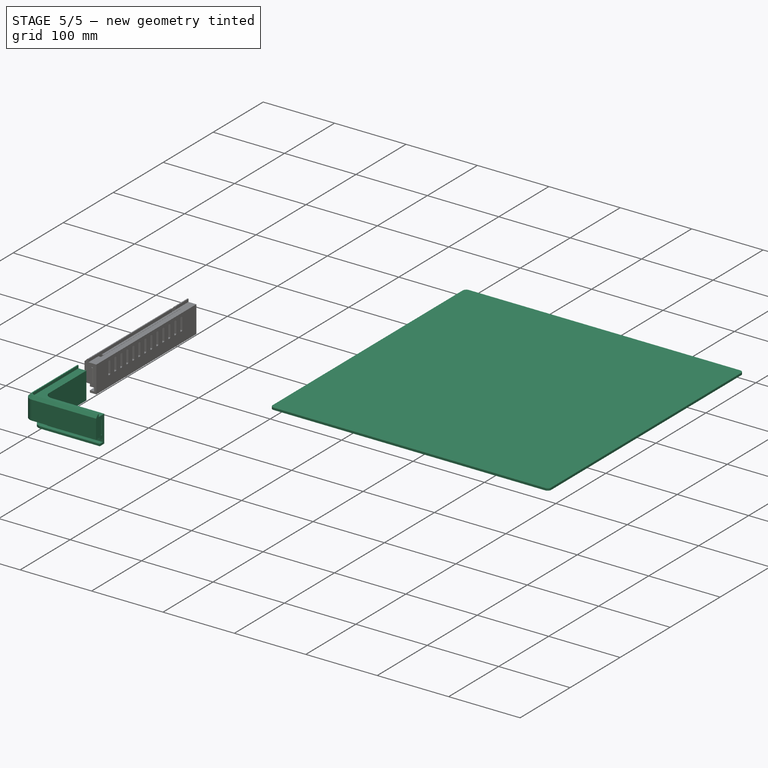
[diagram: stage 5 of 5 — iso view after this stage's code; geometry added in this stage tinted green]
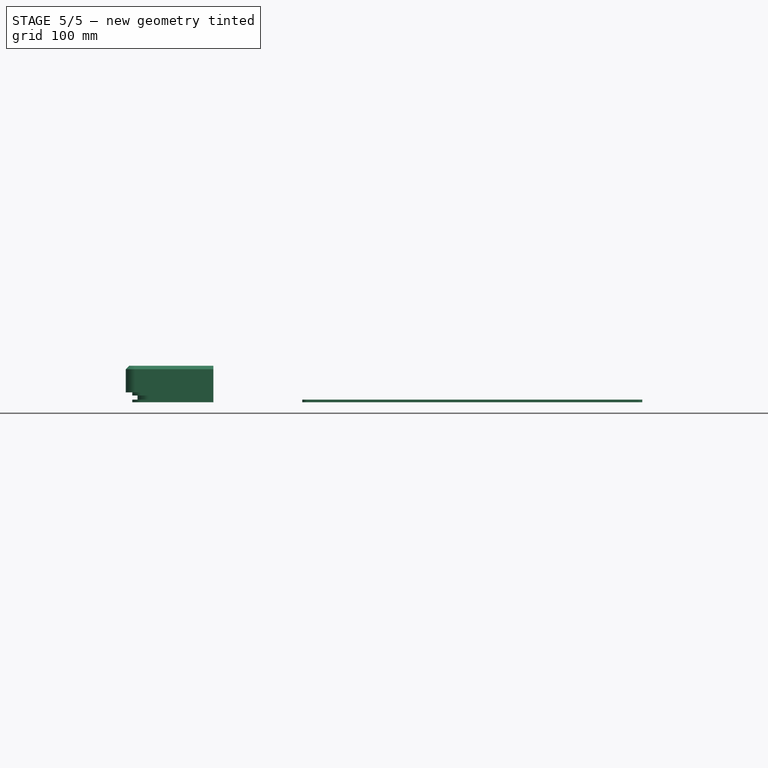
[diagram: stage 5 of 5 — front view after this stage's code; geometry added in this stage tinted green]
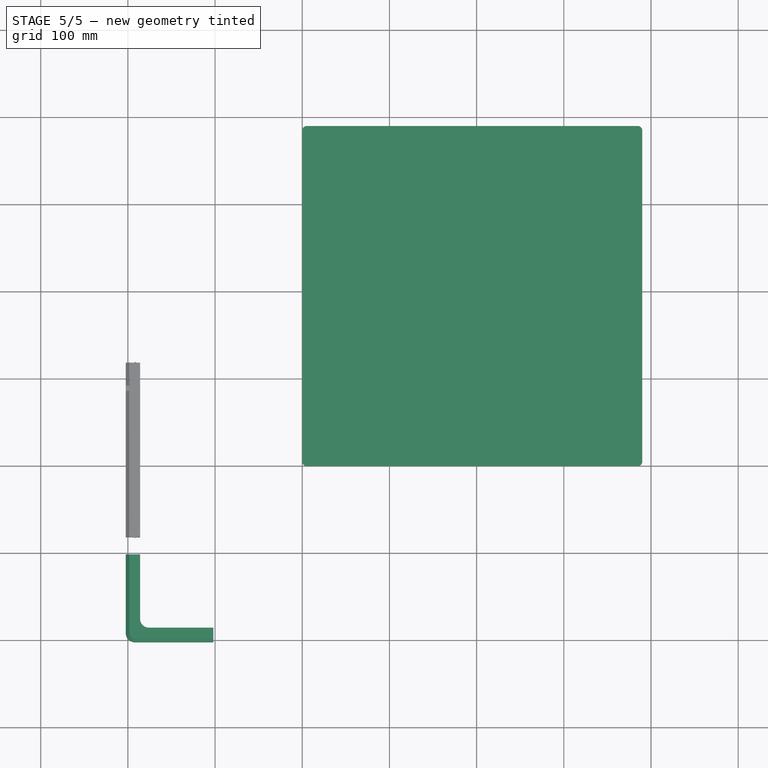
[diagram: stage 5 of 5 — top view after this stage's code; geometry added in this stage tinted green]
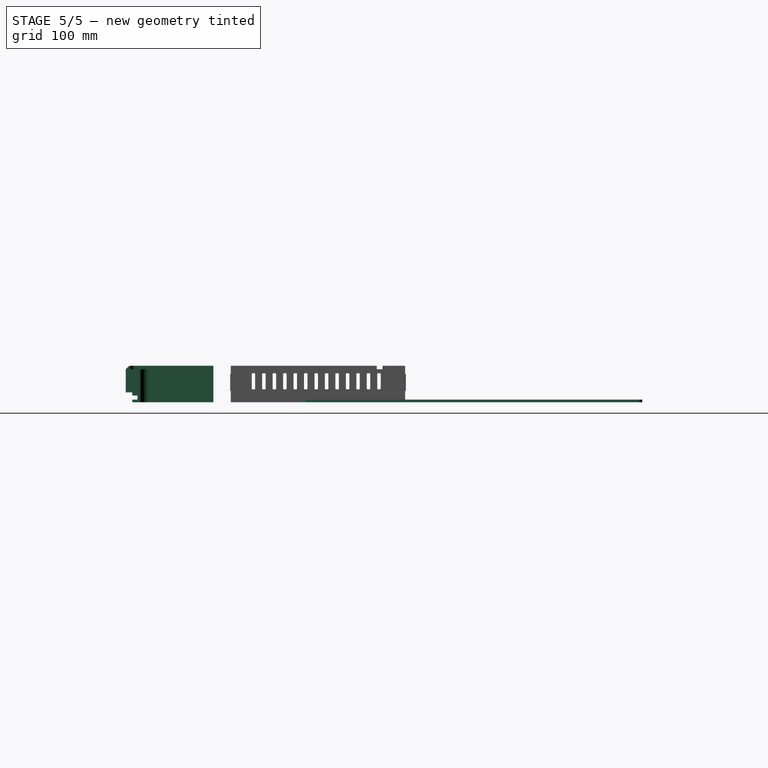
[diagram: stage 5 of 5 — right view after this stage's code; geometry added in this stage tinted green]
FEATURE [Sketcher::SketchObject] Sketch
  ArcFitTolerance = 1e-06
  AttachmentSupport = -> [XY_Plane]
  FullyConstrained = true
  MakeInternals = false
  MapMode = 5
  sketch-geometry (12):
    g0: LineSegment StartX=5 StartY=0 StartZ=0 EndX=385 EndY=0 EndZ=0
    g1: LineSegment StartX=390 StartY=5 StartZ=0 EndX=390 EndY=385 EndZ=0
    g2: LineSegment StartX=385 StartY=390 StartZ=0 EndX=5 EndY=390 EndZ=0
    g3: LineSegment StartX=0 StartY=385 StartZ=0 EndX=0 EndY=5 EndZ=0
    g4: ArcOfCircle CenterX=5 CenterY=385 CenterZ=0 NormalX=0 NormalY=0 NormalZ=1 AngleXU=0 Radius=5 StartAngle=1.5708 EndAngle=3.14159
    g5: GeomPoint [constr] X=0 Y=390 Z=0
    g6: ArcOfCircle CenterX=385 CenterY=385 CenterZ=0 NormalX=0 NormalY=0 NormalZ=1 AngleXU=0 Radius=5 StartAngle=4.3e-15 EndAngle=1.5708
    g7: GeomPoint [constr] X=390 Y=390 Z=0
    g8: ArcOfCircle CenterX=385 CenterY=5 CenterZ=0 NormalX=0 NormalY=0 NormalZ=1 AngleXU=0 Radius=5 StartAngle=4.71239 EndAngle=6.28319
    g9: GeomPoint [constr] X=390 Y=0 Z=0
    g10: ArcOfCircle CenterX=5 CenterY=5 CenterZ=0 NormalX=0 NormalY=0 NormalZ=1 AngleXU=0 Radius=5 StartAngle=3.14159 EndAngle=4.71239
    g11: GeomPoint [constr] X=0 Y=0 Z=0
  constraints (27):
    c: Horizontal(g0)
    c: Horizontal(g2)
    c: Vertical(g1)
    c: Vertical(g3)
    c: Distance(g9,g11) = 390
    c: Distance(g11,g5) = 390
    c: Coincident(g11,g-1)
    c: PointOnObject(g5,g2)
    c: PointOnObject(g5,g3)
    c: Tangent(g2,g4) = -1.5708
    c: Tangent(g3,g4) = -1.5708
    c: PointOnObject(g7,g1)
    c: PointOnObject(g7,g2)
    c: Tangent(g1,g6) = -1.5708
    c: Tangent(g2,g6) = -1.5708
    c: PointOnObject(g9,g0)
    c: PointOnObject(g9,g1)
    c: Tangent(g0,g8) = -1.5708
    c: Tangent(g1,g8) = -1.5708
    c: PointOnObject(g11,g3)
    c: PointOnObject(g11,g0)
    c: Tangent(g3,g10) = -1.5708
    c: Tangent(g0,g10) = -1.5708
    c: Radius(g4) = 5
    c: Equal(g4,g6)
    c: Equal(g6,g8)
    c: Equal(g8,g10)
FEATURE [PartDesign::Pad] Pad
  Direction = (0,0,1)
  Length = 3
  Length2 = 10
  Profile = -> Sketch
  ReferenceAxis = -> Sketch [N_Axis]
  Refine = true
  Suppressed = false
  Type = 0
FEATURE [PartDesign::Body] Body001  label="K1 Max Glass riser"
  AllowCompound = false
  Group = -> [Sketch001,Pad001,Sketch002,Pad002,Sketch003,Pad003,Sketch004,Pad004,Chamfer,Sketch005,Pocket]
  Origin = -> Origin001
  Tip = -> Pocket
FEATURE [PartDesign::FeatureBase] Clone
  BaseFeature = -> Body001
  Suppressed = false
FEATURE [Sketcher::SketchObject] Sketch006
  ArcFitTolerance = 1e-06
  AttachmentSupport = -> [Clone]
  FullyConstrained = false
  MakeInternals = false
  MapMode = 5
  Placement = pos=(0,0,41.75) rot=(0,0,1;0rad)
  sketch-geometry (10):
    g0: LineSegment StartX=-102 StartY=-102 StartZ=0 EndX=-252.426 EndY=-102 EndZ=0
    g1: LineSegment StartX=-252.426 StartY=-102 StartZ=0 EndX=-252.426 EndY=-241.426 EndZ=0
    g2: LineSegment StartX=-252.426 StartY=-241.426 StartZ=0 EndX=-102 EndY=-241.426 EndZ=0
    g3: LineSegment StartX=-102 StartY=-241.426 StartZ=0 EndX=-102 EndY=-102 EndZ=0
    g4: LineSegment [constr] StartX=-102 StartY=-102 StartZ=0 EndX=-102 EndY=0 EndZ=0
    g5: LineSegment [constr] StartX=-102 StartY=-102 StartZ=0 EndX=0 EndY=-102 EndZ=0
    g6: LineSegment StartX=-356.426 StartY=293.566 StartZ=0 EndX=-356.426 EndY=-319.358 EndZ=0
    g7: LineSegment StartX=-356.426 StartY=-319.358 StartZ=0 EndX=312.735 EndY=-319.358 EndZ=0
    g8: LineSegment StartX=312.735 StartY=-319.358 StartZ=0 EndX=312.735 EndY=293.566 EndZ=0
    g9: LineSegment StartX=312.735 StartY=293.566 StartZ=0 EndX=-356.426 EndY=293.566 EndZ=0
  constraints (24):
    c: Coincident(g0,g1)
    c: Coincident(g1,g2)
    c: Coincident(g2,g3)
    c: Coincident(g3,g0)
    c: Horizontal(g0)
    c: Horizontal(g2)
    c: Vertical(g1)
    c: Vertical(g3)
    c: Coincident(g4,g0)
    c: PointOnObject(g4,g-1)
    c: Coincident(g5,g0)
    c: PointOnObject(g5,g-2)
    c: Horizontal(g5)
    c: Vertical(g4)
    c: Equal(g4,g5)
    c: DistanceX(g5,g5) = 102
    c: Coincident(g6,g7)
    c: Coincident(g7,g8)
    c: Coincident(g8,g9)
    c: Coincident(g9,g6)
    c: Vertical(g6)
    c: Vertical(g8)
    c: Horizontal(g7)
    c: Horizontal(g9)
FEATURE [PartDesign::Pocket] Pocket001
  BaseFeature = -> Clone
  Direction = (0,0,-1)
  Length = 5
  Length2 = 5
  Profile = -> Sketch006
  ReferenceAxis = -> Sketch006 [N_Axis]
  Refine = true
  Suppressed = false
  Type = 1
FEATURE [Sketcher::SketchObject] Sketch008
  ArcFitTolerance = 1e-06
  AttachmentSupport = -> [Pocket001]
  ExternalGeometry = -> [Pocket001]
  FullyConstrained = true
  MakeInternals = false
  MapMode = 5
  Placement = pos=(-102,0,0) rot=(0.57735,0.57735,0.57735;2.0944rad)
  sketch-geometry (7):
    g0: LineSegment [constr] StartX=-191.5 StartY=37.75 StartZ=0 EndX=-191.5 EndY=22.75 EndZ=0
    g1: LineSegment StartX=-192.5 StartY=12.75 StartZ=0 EndX=-190.5 EndY=12.75 EndZ=0
    g2: LineSegment StartX=-190.5 StartY=12.75 StartZ=0 EndX=-190.5 EndY=32.75 EndZ=0
    g3: LineSegment StartX=-190.5 StartY=32.75 StartZ=0 EndX=-192.5 EndY=32.75 EndZ=0
    g4: LineSegment StartX=-192.5 StartY=32.75 StartZ=0 EndX=-192.5 EndY=12.75 EndZ=0
    g5: GeomPoint [constr] X=-191.5 Y=22.75 Z=0
    g6: LineSegment [constr] StartX=-191.5 StartY=22.75 StartZ=0 EndX=-191.5 EndY=7.75 EndZ=0
  constraints (18):
    c: Symmetric(g-4,g-4,g0)
    c: Vertical(g0)
    c: Coincident(g1,g2)
    c: Coincident(g2,g3)
    c: Coincident(g3,g4)
    c: Coincident(g4,g1)
    c: Horizontal(g1)
    c: Horizontal(g3)
    c: Vertical(g2)
    c: Vertical(g4)
    c: Symmetric(g3,g1,g5)
    c: Coincident(g5,g0)
    c: Distance(g3,g3) = 2
    c: DistanceY(g4,g4) = 20
    c: Coincident(g6,g0)
    c: PointOnObject(g6,g-5)
    c: Vertical(g6)
    c: Equal(g0,g6)
FEATURE [PartDesign::Pocket] Pocket003
  BaseFeature = -> Pocket001
  Direction = (-1,0,0)
  Length = 2
  Length2 = 5
  Profile = -> Sketch008
  ReferenceAxis = -> Sketch008 [N_Axis]
  Refine = true
  Suppressed = false
  Type = 0
FEATURE [PartDesign::Plane] DatumPlane
  AttachmentOffset = pos=(0,0,0) rot=(1,0,0;1.5708rad)
  AttachmentSupport = -> [Pocket003]
  Length = 640.057
  MapMode = 45
  Placement = pos=(-172.301,-172.301,33.4086) rot=(0.864576,0.240977,0.440951;1.81457rad)
  ResizeMode = 0
  Width = 269.904
  expr: .AttachmentOffset.Rotation.Roll = 90
FEATURE [PartDesign::Mirrored] Mirrored
  BaseFeature = -> Pocket003
  MirrorPlane = -> DatumPlane
  Originals = -> [Pocket003]
  Refine = true
  Suppressed = false
  TransformMode = 0
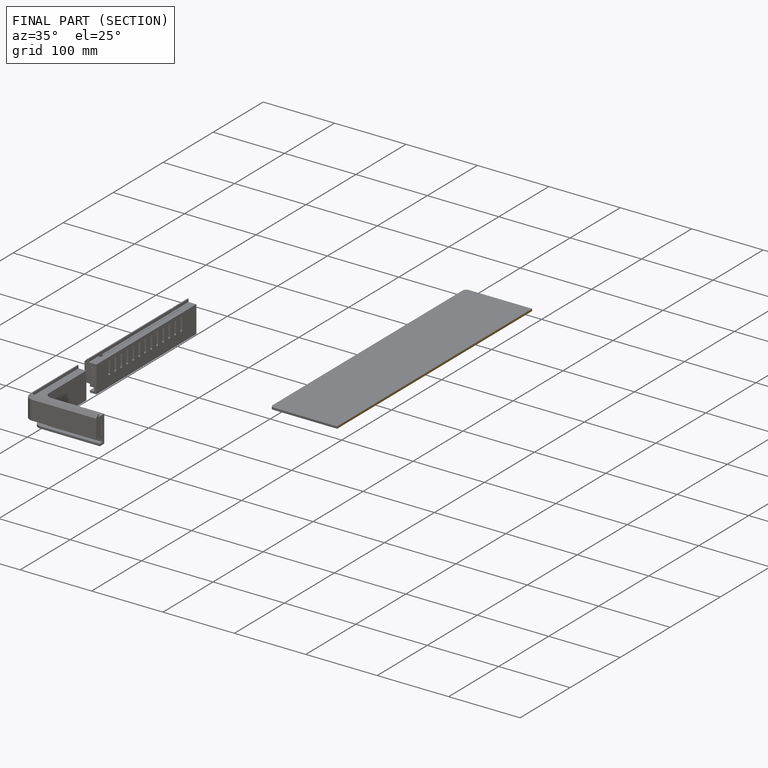
[diagram: finished part — half-section view (interior)]
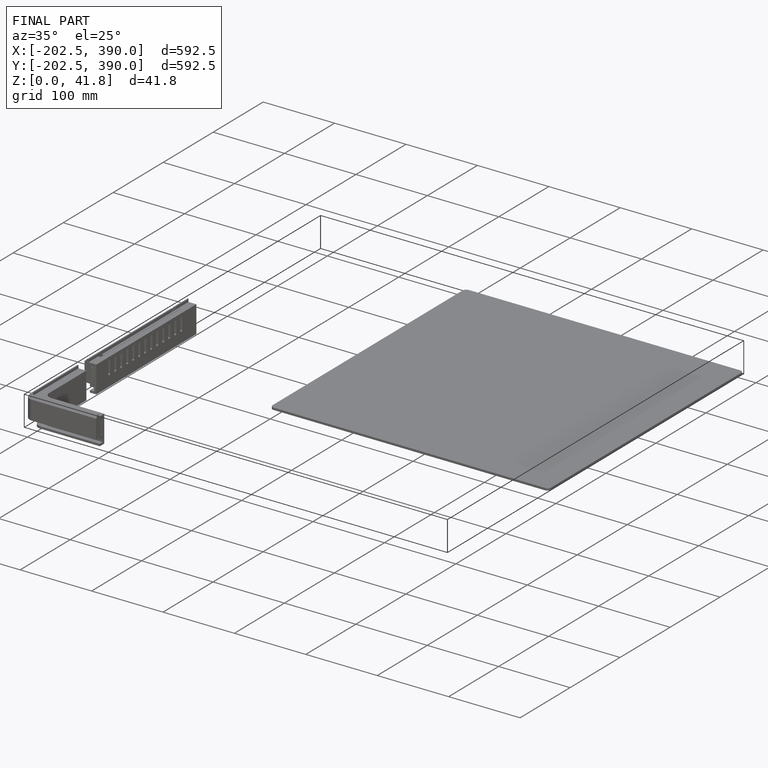
[diagram: finished part — iso view with bounding-box wireframe]
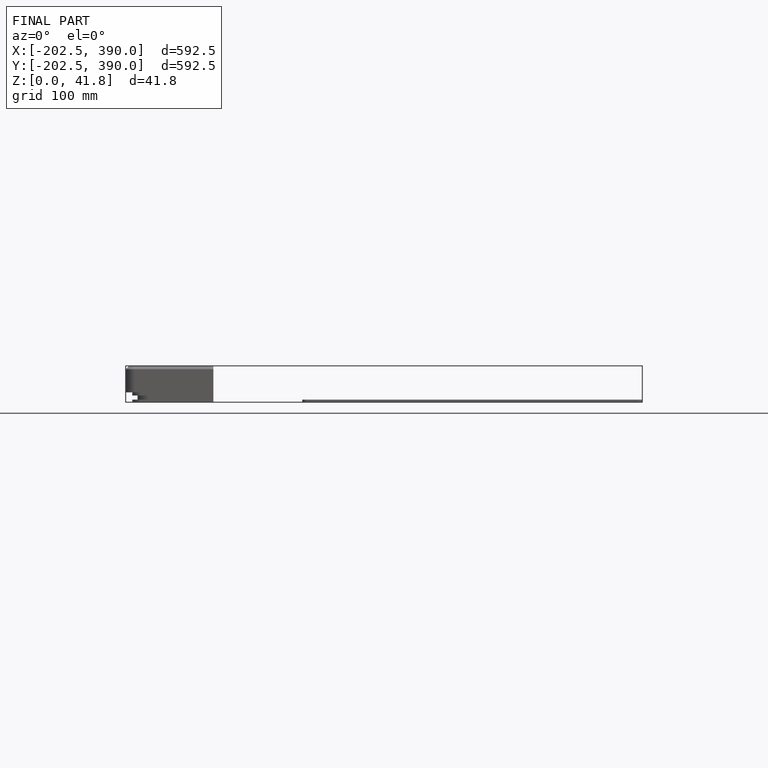
[diagram: finished part — front view with bounding-box wireframe]
